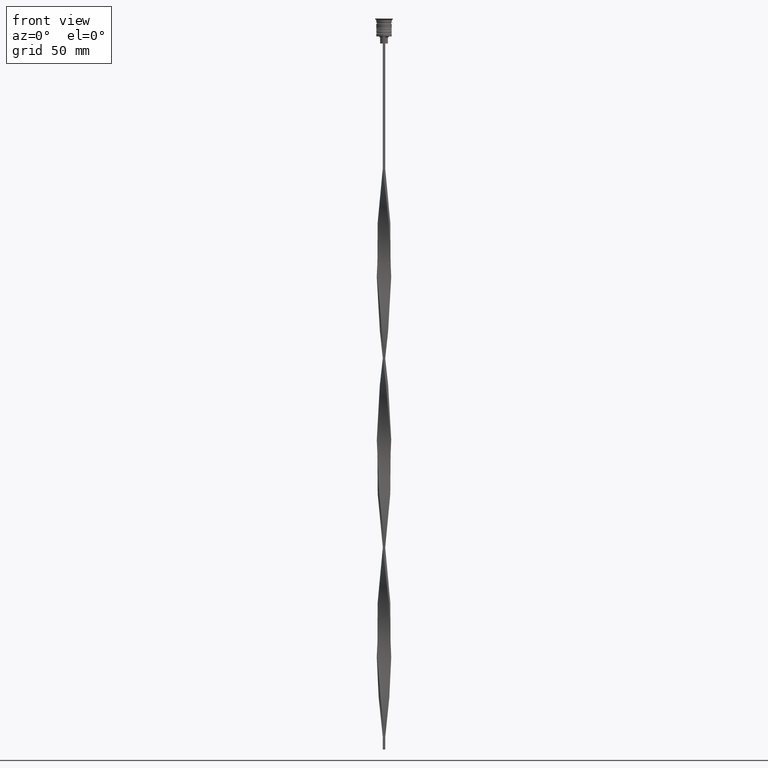
[diagram: clean part render]
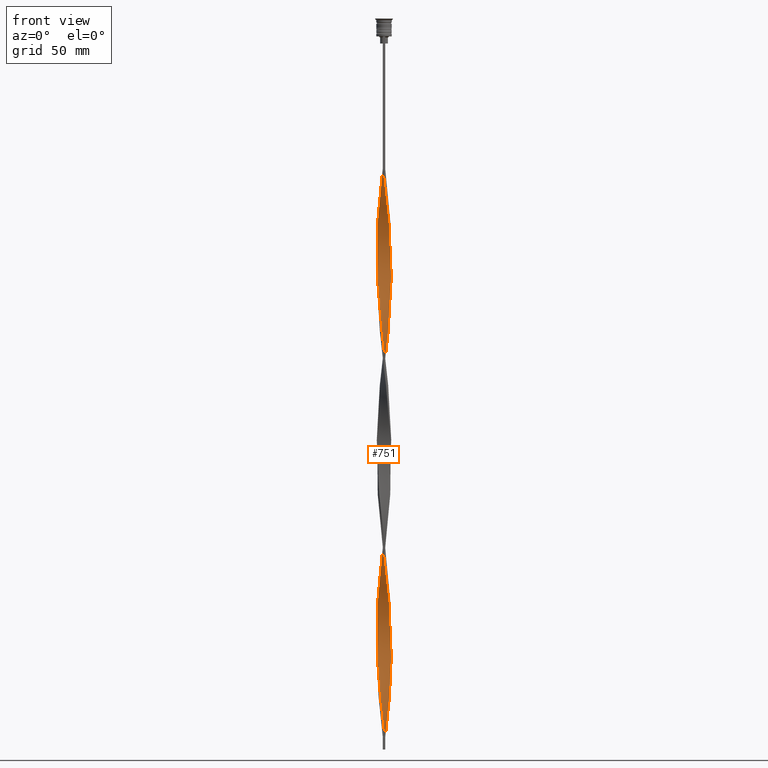
[diagram: same view with one face highlighted and labeled with its STEP entity id]
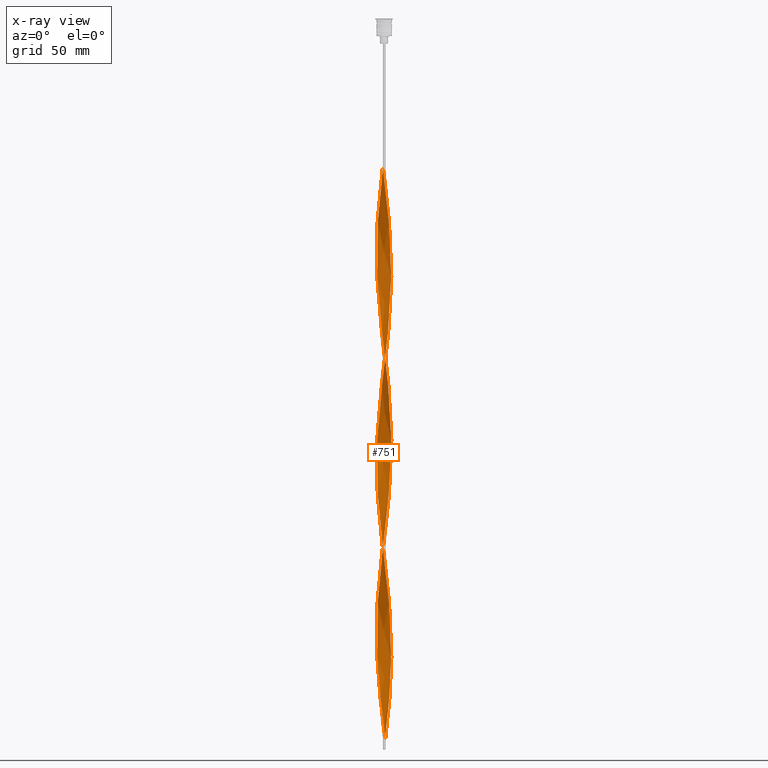
[diagram: x-ray of the same camera — body ghosted, the highlighted face saturated]
A machine part, front view. The second image highlights one B-rep face of the part: STEP entity #751.
The next image is the same camera in x-ray: the body ghosted, the highlighted face saturated — about 0% of this face is hidden behind the body in this view.
In plain terms, the highlighted face is a freeform B-spline surface patch.
Its self-contained STEP definition (entity closure, byte-faithful):
#2 = CARTESIAN_POINT ( 'NONE',  ( -3.007678046072934652, -0.4515227249772648110, -190.7333333333333201 ) ) ;
#9 = CARTESIAN_POINT ( 'NONE',  ( -1.402579241272419841, -2.698661051697986757, -214.6833333333333087 ) ) ;
#12 = CARTESIAN_POINT ( 'NONE',  ( -2.303772973937591395, -1.999981050443478514, -276.5541666666666742 ) ) ;
#16 = CARTESIAN_POINT ( 'NONE',  ( -2.167864254064893359, 2.133158356978606118, -238.6333333333332973 ) ) ;
#20 = CARTESIAN_POINT ( 'NONE',  ( 2.446024322695329989, -1.807474761312824363, -90.94166666666667709 ) ) ;
#27 = CARTESIAN_POINT ( 'NONE',  ( 1.999981050443478958, 2.303772973937590951, -288.5291666666666970 ) ) ;
#38 = CARTESIAN_POINT ( 'NONE',  ( -1.807474761312824807, -2.446024322695329989, -210.6916666666666345 ) ) ;
#49 = CARTESIAN_POINT ( 'NONE',  ( 2.809046431942904931, -1.190190010362667916, -256.5958333333333030 ) ) ;
#57 = CARTESIAN_POINT ( 'NONE',  ( -2.474873734152916782, 1.767766952966369098, -82.95833333333332860 ) ) ;
#61 = CARTESIAN_POINT ( 'NONE',  ( -1.807474761312824363, 2.446024322695330433, -74.97499999999999432 ) ) ;
#69 = CARTESIAN_POINT ( 'NONE',  ( 0.2148133291723920424, -3.043213655198747869, -228.6541666666666686 ) ) ;
#77 = CARTESIAN_POINT ( 'NONE',  ( -2.720943609271079033, 1.358847259689945686, -86.95000000000000284 ) ) ;
#80 = CARTESIAN_POINT ( 'NONE',  ( 2.474873734152916782, 1.767766952966368654, -282.5416666666666288 ) ) ;
#88 = CARTESIAN_POINT ( 'NONE',  ( -3.000000000000000000, 0.5000000000000006661, -182.7499999999999716 ) ) ;
#96 = CARTESIAN_POINT ( 'NONE',  ( 2.809046431942904931, -1.190190010362667916, -256.5958333333332462 ) ) ;
#118 = CARTESIAN_POINT ( 'NONE',  ( -0.2638948795261447655, -3.039350853412309039, -224.6624999999999943 ) ) ;
#131 = CARTESIAN_POINT ( 'NONE',  ( -0.9631475654182616308, 2.884847789265297724, -226.6583333333333030 ) ) ;
#137 = CARTESIAN_POINT ( 'NONE',  ( 0.02454077517687595564, -3.041282254305528010, -138.8416666666666401 ) ) ;
#148 = CARTESIAN_POINT ( 'NONE',  ( 2.972142436947120547, -0.6882321207821405773, -172.7708333333333144 ) ) ;
#152 = CARTESIAN_POINT ( 'NONE',  ( 3.007678046072934208, -0.4515227249772658102, -174.7666666666666515 ) ) ;
#169 = CARTESIAN_POINT ( 'NONE',  ( 0.9164682371244567971, 2.900014822434876738, -210.6916666666666345 ) ) ;
#174 = CARTESIAN_POINT ( 'NONE',  ( 2.972142436947120547, -0.6882321207821405773, -172.7708333333333144 ) ) ;
#188 = CARTESIAN_POINT ( 'NONE',  ( 2.809046431942905375, 1.190190010362665918, -188.7374999999999829 ) ) ;
#191 = CARTESIAN_POINT ( 'NONE',  ( 1.999981050443478070, -2.303772973937591839, -156.8041666666666458 ) ) ;
#207 = CARTESIAN_POINT ( 'NONE',  ( -2.303772973937591395, -1.999981050443478514, -116.8875000000000028 ) ) ;
#211 = CARTESIAN_POINT ( 'NONE',  ( 0.9164682371244567971, 2.900014822434876738, -210.6916666666666345 ) ) ;
#221 = CARTESIAN_POINT ( 'NONE',  ( 1.358847259689945686, -2.720943609271079033, -78.96666666666665435 ) ) ;
#226 = CARTESIAN_POINT ( 'NONE',  ( -0.6882321207821390230, -2.972142436947121436, -292.5208333333333144 ) ) ;
#234 = CARTESIAN_POINT ( 'NONE',  ( -2.446024322695330433, -1.807474761312824363, -274.5583333333332803 ) ) ;
#246 = CARTESIAN_POINT ( 'NONE',  ( 0.2638948795261451541, 3.039350853412309483, -144.8291666666666515 ) ) ;
#249 = CARTESIAN_POINT ( 'NONE',  ( -1.358847259689946130, -2.720943609271079033, -286.5333333333333030 ) ) ;
#253 = CARTESIAN_POINT ( 'NONE',  ( 0.02454077517687595564, -3.041282254305528010, -298.5083333333332689 ) ) ;
#257 = CARTESIAN_POINT ( 'NONE',  ( 2.972142436947121436, 0.6882321207821385789, -112.8958333333333570 ) ) ;
#264 = CARTESIAN_POINT ( 'NONE',  ( -2.588275671453068139, 1.614968472182172210, -172.7708333333333144 ) ) ;
#270 = CARTESIAN_POINT ( 'NONE',  ( 0.2148133291723913763, 3.043213655198747869, -216.6791666666666742 ) ) ;
#275 = CARTESIAN_POINT ( 'NONE',  ( 0.5000000000000004441, 3.000000000000000000, -142.8333333333333144 ) ) ;
#283 = CARTESIAN_POINT ( 'NONE',  ( 0.4515227249772652551, -3.007678046072934208, -70.98333333333333428 ) ) ;
#295 = CARTESIAN_POINT ( 'NONE',  ( -2.303772973937592283, 1.999981050443478070, -168.7791666666666401 ) ) ;
#304 = CARTESIAN_POINT ( 'NONE',  ( -2.960649146587690517, 0.7361051204738573439, -180.7541666666666629 ) ) ;
#307 = CARTESIAN_POINT ( 'NONE',  ( -2.960649146587690961, -0.7361051204738553455, -264.5791666666666515 ) ) ;
#310 = CARTESIAN_POINT ( 'NONE',  ( -3.039350853412309039, -0.2638948795261445990, -260.5874999999999773 ) ) ;
#314 = CARTESIAN_POINT ( 'NONE',  ( -2.720943609271079477, -1.358847259689944798, -198.7166666666666401 ) ) ;
#321 = CARTESIAN_POINT ( 'NONE',  ( 2.446024322695329989, -1.807474761312824363, -250.6083333333333201 ) ) ;
#330 = CARTESIAN_POINT ( 'NONE',  ( -1.190190010362667472, 2.809046431942904931, -68.98749999999999716 ) ) ;
#334 = CARTESIAN_POINT ( 'NONE',  ( 3.000000000000000000, -0.5000000000000003331, -102.9166666666666572 ) ) ;
#341 = CARTESIAN_POINT ( 'NONE',  ( 0.7361051204738559006, 2.960649146587690961, -300.5041666666666629 ) ) ;
#355 = CARTESIAN_POINT ( 'NONE',  ( 0.9631475654182618529, 2.884847789265297280, -298.5083333333332689 ) ) ;
#366 = CARTESIAN_POINT ( 'NONE',  ( -0.02454077517687638932, -3.041282254305528454, -226.6583333333333030 ) ) ;
#378 = CARTESIAN_POINT ( 'NONE',  ( 2.884847789265297724, -0.9631475654182618529, -258.5916666666666401 ) ) ;
#384 = CARTESIAN_POINT ( 'NONE',  ( 2.884847789265297724, -0.9631475654182618529, -258.5916666666666401 ) ) ;
#392 = CARTESIAN_POINT ( 'NONE',  ( -2.614000010619525138, 1.572990165913118021, -84.95416666666666572 ) ) ;
#410 = CARTESIAN_POINT ( 'NONE',  ( 1.614968472182171322, 2.588275671453069027, -292.5208333333333712 ) ) ;
#429 = CARTESIAN_POINT ( 'NONE',  ( -0.2638948795261426561, 3.039350853412309483, -220.6708333333333485 ) ) ;
#433 = CARTESIAN_POINT ( 'NONE',  ( -2.167864254064893803, -2.133158356978605230, -206.6999999999999602 ) ) ;
#444 = CARTESIAN_POINT ( 'NONE',  ( 2.720943609271079033, -1.358847259689946130, -166.7833333333333030 ) ) ;
#449 = CARTESIAN_POINT ( 'NONE',  ( 1.807474761312824141, -2.446024322695330433, -154.8083333333333371 ) ) ;
#461 = CARTESIAN_POINT ( 'NONE',  ( 1.144704353466773350, 2.827887207922633817, -208.6958333333333258 ) ) ;
#465 = CARTESIAN_POINT ( 'NONE',  ( 0.4999999999999997780, -3.000000000000000000, -142.8333333333333144 ) ) ;
#482 = CARTESIAN_POINT ( 'NONE',  ( 0.02454077517687595564, -3.041282254305528010, -138.8416666666666401 ) ) ;
#486 = CARTESIAN_POINT ( 'NONE',  ( 1.144704353466773128, 2.827887207922633817, -208.6958333333333258 ) ) ;
#500 = CARTESIAN_POINT ( 'NONE',  ( 1.572990165913119354, 2.614000010619523806, -204.7041666666666515 ) ) ;
#503 = CARTESIAN_POINT ( 'NONE',  ( 2.960649146587690517, 0.7361051204738562337, -184.7458333333333371 ) ) ;
#515 = CARTESIAN_POINT ( 'NONE',  ( -0.02454077517687638932, -3.041282254305528454, -66.99166666666667425 ) ) ;
#518 = CARTESIAN_POINT ( 'NONE',  ( -1.572990165913117799, -2.614000010619525138, -284.5375000000000796 ) ) ;
#521 = CARTESIAN_POINT ( 'NONE',  ( -2.720943609271079033, 1.358847259689945686, -86.95000000000000284 ) ) ;
#530 = CARTESIAN_POINT ( 'NONE',  ( 0.4999999999999997780, -3.000000000000000000, -302.5000000000000000 ) ) ;
#531 = CARTESIAN_POINT ( 'NONE',  ( 2.900014822434877182, 0.9164682371244560199, -114.8916666666666515 ) ) ;
#542 = CARTESIAN_POINT ( 'NONE',  ( -0.02454077517687562951, 3.041282254305528010, -218.6749999999999829 ) ) ;
#547 = CARTESIAN_POINT ( 'NONE',  ( -0.6882321207821383569, 2.972142436947121880, -152.8125000000000000 ) ) ;
#554 = CARTESIAN_POINT ( 'NONE',  ( 3.000000000000000000, -0.5000000000000003331, -102.9166666666666572 ) ) ;
#558 = CARTESIAN_POINT ( 'NONE',  ( -2.884847789265297724, -0.9631475654182615198, -266.5749999999999318 ) ) ;
#562 = CARTESIAN_POINT ( 'NONE',  ( -1.767766952966369098, -2.474873734152916338, -282.5416666666666288 ) ) ;
#566 = CARTESIAN_POINT ( 'NONE',  ( -2.588275671453068139, 1.614968472182172432, -172.7708333333333144 ) ) ;
#573 = CARTESIAN_POINT ( 'NONE',  ( -1.572990165913117355, 2.614000010619525582, -160.7958333333332916 ) ) ;
#576 = CARTESIAN_POINT ( 'NONE',  ( -0.4515227249772655882, -3.007678046072934208, -294.5166666666666515 ) ) ;
#580 = CARTESIAN_POINT ( 'NONE',  ( -0.6882321207821390230, -2.972142436947121436, -292.5208333333333712 ) ) ;
#585 = CARTESIAN_POINT ( 'NONE',  ( -3.041282254305528454, 0.02454077517687698606, -186.7416666666666458 ) ) ;
#592 = CARTESIAN_POINT ( 'NONE',  ( -0.5000000000000001110, -3.000000000000000000, -63.00000000000000000 ) ) ;
#598 = CARTESIAN_POINT ( 'NONE',  ( -2.972142436947121436, 0.6882321207821388009, -252.6041666666666003 ) ) ;
#605 = CARTESIAN_POINT ( 'NONE',  ( -1.962543740019619731, 2.335747457686310202, -164.7874999999999659 ) ) ;
#615 = CARTESIAN_POINT ( 'NONE',  ( 2.960649146587690961, -0.7361051204738556786, -260.5874999999999773 ) ) ;
#626 = CARTESIAN_POINT ( 'NONE',  ( -1.358847259689945242, 2.720943609271079033, -158.7999999999999829 ) ) ;
#634 = CARTESIAN_POINT ( 'NONE',  ( -2.614000010619524250, -1.572990165913118243, -200.7124999999999773 ) ) ;
#641 = CARTESIAN_POINT ( 'NONE',  ( -3.007678046072934208, 0.4515227249772654772, -94.93333333333332291 ) ) ;
#645 = CARTESIAN_POINT ( 'NONE',  ( 0.9164682371244560199, -2.900014822434877182, -234.6416666666666515 ) ) ;
#653 = CARTESIAN_POINT ( 'NONE',  ( 2.900014822434877182, 0.9164682371244560199, -274.5583333333332803 ) ) ;
#665 = CARTESIAN_POINT ( 'NONE',  ( 1.190190010362667916, 2.809046431942904931, -296.5125000000000455 ) ) ;
#676 = CARTESIAN_POINT ( 'NONE',  ( 2.698661051697986757, -1.402579241272419397, -254.5999999999999375 ) ) ;
#687 = CARTESIAN_POINT ( 'NONE',  ( -2.474873734152916782, 1.767766952966369098, -82.95833333333332860 ) ) ;
#694 = CARTESIAN_POINT ( 'NONE',  ( 1.807474761312824807, 2.446024322695329989, -290.5249999999999204 ) ) ;
#703 = CARTESIAN_POINT ( 'NONE',  ( 2.900014822434877182, 0.9164682371244560199, -274.5583333333332803 ) ) ;
#708 = CARTESIAN_POINT ( 'NONE',  ( 0.2148133291723920146, -3.043213655198747869, -68.98749999999999716 ) ) ;
#716 = CARTESIAN_POINT ( 'NONE',  ( 3.007678046072934208, -0.4515227249772658102, -174.7666666666666515 ) ) ;
#719 = CARTESIAN_POINT ( 'NONE',  ( 2.960649146587690517, -0.7361051204738555676, -260.5874999999999773 ) ) ;
#739 = CARTESIAN_POINT ( 'NONE',  ( -1.999981050443478514, 2.303772973937591395, -236.6374999999999886 ) ) ;
#743 = CARTESIAN_POINT ( 'NONE',  ( -2.972142436947121436, 0.6882321207821388009, -92.93750000000001421 ) ) ;
#751 = ADVANCED_FACE ( 'NONE', ( #1585 ), #1913, .T. ) ;
#757 = CARTESIAN_POINT ( 'NONE',  ( 3.039350853412309483, 0.2638948795261428781, -180.7541666666666629 ) ) ;
#759 = CARTESIAN_POINT ( 'NONE',  ( 1.190190010362667472, -2.809046431942904931, -148.8208333333332973 ) ) ;
#774 = CARTESIAN_POINT ( 'NONE',  ( -0.2148133291723924865, -3.043213655198747869, -136.8458333333333314 ) ) ;
#778 = CARTESIAN_POINT ( 'NONE',  ( 1.572990165913119576, 2.614000010619524250, -204.7041666666666799 ) ) ;
#788 = CARTESIAN_POINT ( 'NONE',  ( 1.999981050443478958, 2.303772973937591395, -128.8624999999999829 ) ) ;
#796 = CARTESIAN_POINT ( 'NONE',  ( -0.4515227249772655882, -3.007678046072934208, -134.8499999999999659 ) ) ;
#801 = CARTESIAN_POINT ( 'NONE',  ( 3.000000000000000000, 0.4999999999999995559, -182.7499999999999716 ) ) ;
#812 = CARTESIAN_POINT ( 'NONE',  ( 0.02454077517687682300, 3.041282254305528454, -146.8249999999999886 ) ) ;
#815 = CARTESIAN_POINT ( 'NONE',  ( -0.9164682371244565751, -2.900014822434876738, -290.5249999999999204 ) ) ;
#818 = CARTESIAN_POINT ( 'NONE',  ( -1.358847259689946130, -2.720943609271079033, -126.8666666666666600 ) ) ;
#830 = CARTESIAN_POINT ( 'NONE',  ( -1.767766952966368654, 2.474873734152917226, -162.7916666666666572 ) ) ;
#834 = CARTESIAN_POINT ( 'NONE',  ( -0.2148133291723924865, -3.043213655198747869, -296.5124999999999886 ) ) ;
#849 = CARTESIAN_POINT ( 'NONE',  ( -2.303772973937591839, 1.999981050443478070, -168.7791666666666401 ) ) ;
#866 = CARTESIAN_POINT ( 'NONE',  ( 1.614968472182171322, 2.588275671453069027, -132.8541666666666572 ) ) ;
#873 = CARTESIAN_POINT ( 'NONE',  ( 1.190190010362667916, 2.809046431942904931, -136.8458333333333314 ) ) ;
#876 = CARTESIAN_POINT ( 'NONE',  ( -2.809046431942904931, -1.190190010362667472, -268.5708333333333258 ) ) ;
#880 = CARTESIAN_POINT ( 'NONE',  ( -3.000000000000000000, -0.4999999999999998890, -262.5833333333332575 ) ) ;
#883 = CARTESIAN_POINT ( 'NONE',  ( -2.884847789265297280, 0.9631475654182620749, -178.7583333333332973 ) ) ;
#889 = CARTESIAN_POINT ( 'NONE',  ( 0.5000000000000002220, 1.000000000000000000, -302.5000000000000000 ) ) ;
#900 = CARTESIAN_POINT ( 'NONE',  ( -0.4515227249772649221, 3.007678046072934652, -150.8166666666666629 ) ) ;
#908 = CARTESIAN_POINT ( 'NONE',  ( 3.000000000000000000, -0.5000000000000003331, -262.5833333333332575 ) ) ;
#916 = CARTESIAN_POINT ( 'NONE',  ( -2.588275671453069027, -1.614968472182170878, -272.5624999999998863 ) ) ;
#924 = CARTESIAN_POINT ( 'NONE',  ( 1.807474761312824807, 2.446024322695329989, -130.8583333333333201 ) ) ;
#934 = CARTESIAN_POINT ( 'NONE',  ( 2.303772973937590951, -1.999981050443478958, -248.6124999999999829 ) ) ;
#941 = CARTESIAN_POINT ( 'NONE',  ( -2.614000010619525138, 1.572990165913117799, -84.95416666666666572 ) ) ;
#945 = CARTESIAN_POINT ( 'NONE',  ( 0.7361051204738557896, 2.960649146587690517, -300.5041666666666629 ) ) ;
#954 = CARTESIAN_POINT ( 'NONE',  ( -0.5000000000000001110, -3.000000000000000000, -222.6666666666666288 ) ) ;
#963 = CARTESIAN_POINT ( 'NONE',  ( 2.698661051697986757, -1.402579241272419397, -254.5999999999999375 ) ) ;
#970 = CARTESIAN_POINT ( 'NONE',  ( -2.884847789265297280, 0.9631475654182620749, -178.7583333333332973 ) ) ;
#972 = EDGE_CURVE ( 'NONE', #1357, #2920, #2328, .T. ) ;
#978 = CARTESIAN_POINT ( 'NONE',  ( -3.039350853412309483, -0.2638948795261445990, -100.9208333333333343 ) ) ;
#982 = CARTESIAN_POINT ( 'NONE',  ( 2.614000010619525138, 1.572990165913117577, -280.5458333333333485 ) ) ;
#992 = CARTESIAN_POINT ( 'NONE',  ( 0.6882321207821388009, -2.972142436947121436, -232.6458333333333428 ) ) ;
#1002 = CARTESIAN_POINT ( 'NONE',  ( 1.962543740019620175, -2.335747457686308870, -244.6208333333333371 ) ) ;
#1006 = CARTESIAN_POINT ( 'NONE',  ( -0.5000000000000001110, -3.000000000000000000, -63.00000000000000000 ) ) ;
#1018 = CARTESIAN_POINT ( 'NONE',  ( -0.9631475654182622970, -2.884847789265297280, -218.6749999999999829 ) ) ;
#1030 = CARTESIAN_POINT ( 'NONE',  ( -0.5000000000000001110, 3.000000000000000000, -222.6666666666666288 ) ) ;
#1034 = CARTESIAN_POINT ( 'NONE',  ( -2.698661051697987201, -1.402579241272419175, -110.9000000000000057 ) ) ;
#1053 = CARTESIAN_POINT ( 'NONE',  ( 1.358847259689946352, 2.720943609271079033, -206.6999999999999602 ) ) ;
#1056 = CARTESIAN_POINT ( 'NONE',  ( 1.358847259689946352, 2.720943609271079033, -206.6999999999999602 ) ) ;
#1071 = CARTESIAN_POINT ( 'NONE',  ( 3.041282254305528010, 0.02454077517687579257, -178.7583333333332973 ) ) ;
#1074 = CARTESIAN_POINT ( 'NONE',  ( -1.144704353466773794, -2.827887207922633372, -128.8624999999999829 ) ) ;
#1082 = CARTESIAN_POINT ( 'NONE',  ( 1.402579241272419397, 2.698661051697986757, -134.8499999999999659 ) ) ;
#1089 = CARTESIAN_POINT ( 'NONE',  ( 1.807474761312824141, -2.446024322695330433, -154.8083333333333371 ) ) ;
#1093 = CARTESIAN_POINT ( 'NONE',  ( 2.474873734152916338, -1.767766952966369542, -162.7916666666666572 ) ) ;
#1105 = CARTESIAN_POINT ( 'NONE',  ( 1.767766952966369098, -2.474873734152916782, -82.95833333333332860 ) ) ;
#1111 = CARTESIAN_POINT ( 'NONE',  ( 2.335747457686308426, -1.962543740019620842, -160.7958333333332916 ) ) ;
#1115 = CARTESIAN_POINT ( 'NONE',  ( -2.884847789265297724, -0.9631475654182615198, -106.9083333333333314 ) ) ;
#1126 = CARTESIAN_POINT ( 'NONE',  ( -1.144704353466773350, 2.827887207922633817, -156.8041666666666458 ) ) ;
#1131 = CARTESIAN_POINT ( 'NONE',  ( -2.884847789265297724, -0.9631475654182615198, -266.5749999999999318 ) ) ;
#1143 = CARTESIAN_POINT ( 'NONE',  ( 2.335747457686308870, 1.962543740019620397, -124.8708333333333371 ) ) ;
#1152 = CARTESIAN_POINT ( 'NONE',  ( 2.335747457686308870, 1.962543740019620175, -124.8708333333333371 ) ) ;
#1161 = CARTESIAN_POINT ( 'NONE',  ( -2.809046431942904931, 1.190190010362667028, -176.7624999999999886 ) ) ;
#1165 = CARTESIAN_POINT ( 'NONE',  ( -3.000000000000000000, -0.4999999999999998890, -262.5833333333332575 ) ) ;
#1175 = CARTESIAN_POINT ( 'NONE',  ( 2.884847789265297724, -0.9631475654182618529, -98.92499999999998295 ) ) ;
#1179 = EDGE_LOOP ( 'NONE', ( #3806, #3332, #3798, #2034 ) ) ;
#1182 = CARTESIAN_POINT ( 'NONE',  ( -0.9164682371244557979, 2.900014822434877182, -154.8083333333333371 ) ) ;
#1190 = CARTESIAN_POINT ( 'NONE',  ( -3.041282254305528454, -0.02454077517687622625, -258.5916666666666401 ) ) ;
#1193 = CARTESIAN_POINT ( 'NONE',  ( -2.972142436947120991, -0.6882321207821395781, -192.7291666666666288 ) ) ;
#1200 = CARTESIAN_POINT ( 'NONE',  ( -2.167864254064893803, -2.133158356978605230, -206.6999999999999602 ) ) ;
#1211 = CARTESIAN_POINT ( 'NONE',  ( 3.041282254305528454, -0.02454077517687655238, -106.9083333333333314 ) ) ;
#1218 = CARTESIAN_POINT ( 'NONE',  ( -3.041282254305528454, 0.02454077517687698606, -186.7416666666666458 ) ) ;
#1235 = CARTESIAN_POINT ( 'NONE',  ( -0.02454077517687638932, -3.041282254305528454, -226.6583333333333030 ) ) ;
#1245 = CARTESIAN_POINT ( 'NONE',  ( 2.335747457686308870, 1.962543740019620397, -284.5375000000000796 ) ) ;
#1254 = CARTESIAN_POINT ( 'NONE',  ( -2.335747457686310202, -1.962543740019619509, -204.7041666666666799 ) ) ;
#1262 = CARTESIAN_POINT ( 'NONE',  ( -3.039350853412309483, 0.2638948795261439328, -184.7458333333333371 ) ) ;
#1269 = CARTESIAN_POINT ( 'NONE',  ( -3.043213655198747869, 0.2148133291723922644, -96.92916666666667425 ) ) ;
#1272 = CARTESIAN_POINT ( 'NONE',  ( -2.614000010619524250, -1.572990165913118465, -200.7124999999999773 ) ) ;
#1278 = CARTESIAN_POINT ( 'NONE',  ( -2.972142436947120991, -0.6882321207821395781, -192.7291666666666572 ) ) ;
#1286 = CARTESIAN_POINT ( 'NONE',  ( -1.402579241272419175, 2.698661051697986757, -70.98333333333333428 ) ) ;
#1290 = CARTESIAN_POINT ( 'NONE',  ( 2.827887207922633817, 1.144704353466773572, -276.5541666666666174 ) ) ;
#1310 = CARTESIAN_POINT ( 'NONE',  ( 3.039350853412309039, -0.2638948795261449320, -264.5791666666666515 ) ) ;
#1321 = CARTESIAN_POINT ( 'NONE',  ( -0.6882321207821390230, -2.972142436947121436, -132.8541666666666572 ) ) ;
#1326 = CARTESIAN_POINT ( 'NONE',  ( 0.7361051204738550124, -2.960649146587690517, -144.8291666666666515 ) ) ;
#1339 = CARTESIAN_POINT ( 'NONE',  ( 0.4999999999999997780, -3.000000000000000000, -142.8333333333333144 ) ) ;
#1342 = CARTESIAN_POINT ( 'NONE',  ( 2.167864254064892915, -2.133158356978606118, -158.7999999999999829 ) ) ;
#1357 = VERTEX_POINT ( 'NONE', #3739 ) ;
#1363 = CARTESIAN_POINT ( 'NONE',  ( 2.614000010619524250, -1.572990165913119132, -164.7874999999999659 ) ) ;
#1366 = CARTESIAN_POINT ( 'NONE',  ( 3.041282254305528010, 0.02454077517687579257, -178.7583333333332973 ) ) ;
#1381 = CARTESIAN_POINT ( 'NONE',  ( -0.02454077517687562951, 3.041282254305528010, -218.6749999999999829 ) ) ;
#1384 = CARTESIAN_POINT ( 'NONE',  ( -2.827887207922633372, 1.144704353466773794, -88.94583333333332575 ) ) ;
#1398 = CARTESIAN_POINT ( 'NONE',  ( -0.9164682371244565751, -2.900014822434876738, -130.8583333333333201 ) ) ;
#1401 = CARTESIAN_POINT ( 'NONE',  ( 0.6882321207821407993, 2.972142436947120547, -212.6875000000000284 ) ) ;
#1415 = CARTESIAN_POINT ( 'NONE',  ( 2.720943609271079033, 1.358847259689945242, -118.8833333333333258 ) ) ;
#1426 = CARTESIAN_POINT ( 'NONE',  ( -0.5000000000000001110, 3.000000000000000000, -222.6666666666666288 ) ) ;
#1438 = CARTESIAN_POINT ( 'NONE',  ( 0.9631475654182618529, 2.884847789265297280, -138.8416666666666401 ) ) ;
#1439 = CARTESIAN_POINT ( 'NONE',  ( 0.5000000000000004441, 3.000000000000000000, -302.5000000000000000 ) ) ;
#1441 = CARTESIAN_POINT ( 'NONE',  ( -2.827887207922633372, 1.144704353466774016, -248.6124999999999829 ) ) ;
#1448 = CARTESIAN_POINT ( 'NONE',  ( 0.02454077517687682300, 3.041282254305528454, -146.8249999999999886 ) ) ;
#1455 = CARTESIAN_POINT ( 'NONE',  ( 3.043213655198747869, 0.2148133291723917371, -108.9041666666666828 ) ) ;
#1458 = CARTESIAN_POINT ( 'NONE',  ( 0.02454077517687595564, -3.041282254305528010, -298.5083333333332689 ) ) ;
#1461 = CARTESIAN_POINT ( 'NONE',  ( -0.4515227249772655882, -3.007678046072934208, -294.5166666666666515 ) ) ;
#1464 = CARTESIAN_POINT ( 'NONE',  ( 2.900014822434877182, 0.9164682371244560199, -114.8916666666666515 ) ) ;
#1472 = CARTESIAN_POINT ( 'NONE',  ( 2.167864254064893359, 2.133158356978605230, -126.8666666666666600 ) ) ;
#1484 = CARTESIAN_POINT ( 'NONE',  ( -2.614000010619525138, 1.572990165913118021, -244.6208333333333371 ) ) ;
#1487 = CARTESIAN_POINT ( 'NONE',  ( -3.039350853412309039, 0.2638948795261439328, -184.7458333333333371 ) ) ;
#1495 = CARTESIAN_POINT ( 'NONE',  ( -0.7361051204738575660, -2.960649146587690517, -220.6708333333333485 ) ) ;
#1501 = CARTESIAN_POINT ( 'NONE',  ( -0.2148133291723924587, -3.043213655198747869, -296.5125000000000455 ) ) ;
#1505 = CARTESIAN_POINT ( 'NONE',  ( 1.767766952966369098, -2.474873734152916782, -82.95833333333332860 ) ) ;
#1512 = CARTESIAN_POINT ( 'NONE',  ( -0.9631475654182622970, -2.884847789265297280, -218.6749999999999829 ) ) ;
#1519 = CARTESIAN_POINT ( 'NONE',  ( -2.167864254064893359, 2.133158356978606118, -78.96666666666665435 ) ) ;
#1524 = CARTESIAN_POINT ( 'NONE',  ( 0.7361051204738557896, 2.960649146587690517, -140.8375000000000057 ) ) ;
#1531 = CARTESIAN_POINT ( 'NONE',  ( -1.614968472182172432, -2.588275671453068139, -212.6875000000000000 ) ) ;
#1546 = CARTESIAN_POINT ( 'NONE',  ( -1.614968472182171100, 2.588275671453069027, -72.97916666666665719 ) ) ;
#1556 = CARTESIAN_POINT ( 'NONE',  ( 1.572990165913117799, -2.614000010619525138, -240.6291666666666629 ) ) ;
#1562 = CARTESIAN_POINT ( 'NONE',  ( -1.807474761312824363, 2.446024322695330433, -74.97499999999999432 ) ) ;
#1565 = CARTESIAN_POINT ( 'NONE',  ( 2.133158356978606118, -2.167864254064893359, -246.6166666666666174 ) ) ;
#1572 = CARTESIAN_POINT ( 'NONE',  ( -1.190190010362667250, -2.809046431942904931, -216.6791666666666742 ) ) ;
#1581 = CARTESIAN_POINT ( 'NONE',  ( -0.7361051204738575660, -2.960649146587690073, -220.6708333333333485 ) ) ;
#1585 = FACE_OUTER_BOUND ( 'NONE', #1179, .T. ) ;
#1592 = EDGE_CURVE ( 'NONE', #2902, #2920, #1802, .T. ) ;
#1600 = CARTESIAN_POINT ( 'NONE',  ( 3.043213655198747869, 0.2148133291723917371, -268.5708333333332689 ) ) ;
#1617 = CARTESIAN_POINT ( 'NONE',  ( -0.7361051204738554565, 2.960649146587690961, -224.6624999999999943 ) ) ;
#1621 = CARTESIAN_POINT ( 'NONE',  ( -1.402579241272419841, -2.698661051697986757, -214.6833333333333087 ) ) ;
#1632 = CARTESIAN_POINT ( 'NONE',  ( 2.884847789265297724, 0.9631475654182610757, -186.7416666666666458 ) ) ;
#1637 = CARTESIAN_POINT ( 'NONE',  ( 3.043213655198747869, -0.2148133291723912652, -176.7624999999999886 ) ) ;
#1649 = CARTESIAN_POINT ( 'NONE',  ( -1.358847259689946130, -2.720943609271079033, -126.8666666666666600 ) ) ;
#1653 = CARTESIAN_POINT ( 'NONE',  ( -3.000000000000000000, -0.4999999999999998890, -102.9166666666666572 ) ) ;
#1675 = CARTESIAN_POINT ( 'NONE',  ( 1.999981050443478070, -2.303772973937591395, -156.8041666666666458 ) ) ;
#1678 = CARTESIAN_POINT ( 'NONE',  ( -1.767766952966369098, -2.474873734152916338, -122.8749999999999858 ) ) ;
#1692 = CARTESIAN_POINT ( 'NONE',  ( 2.698661051697987201, 1.402579241272418731, -190.7333333333333201 ) ) ;
#1695 = CARTESIAN_POINT ( 'NONE',  ( 2.809046431942905375, 1.190190010362665918, -188.7374999999999545 ) ) ;
#1707 = CARTESIAN_POINT ( 'NONE',  ( 2.960649146587690961, -0.7361051204738556786, -100.9208333333333343 ) ) ;
#1711 = CARTESIAN_POINT ( 'NONE',  ( -2.614000010619525138, 1.572990165913117799, -244.6208333333333087 ) ) ;
#1714 = CARTESIAN_POINT ( 'NONE',  ( -1.190190010362667694, 2.809046431942904931, -228.6541666666666686 ) ) ;
#1727 = CARTESIAN_POINT ( 'NONE',  ( 0.2148133291723920424, -3.043213655198747869, -68.98749999999999716 ) ) ;
#1731 = CARTESIAN_POINT ( 'NONE',  ( 0.4999999999999997780, -3.000000000000000000, -302.5000000000000000 ) ) ;
#1742 = CARTESIAN_POINT ( 'NONE',  ( -2.133158356978605230, 2.167864254064893359, -166.7833333333333030 ) ) ;
#1749 = CARTESIAN_POINT ( 'NONE',  ( -0.2148133291723916816, 3.043213655198747869, -148.8208333333333258 ) ) ;
#1759 = CARTESIAN_POINT ( 'NONE',  ( 1.144704353466773572, -2.827887207922633817, -76.97083333333333144 ) ) ;
#1766 = CARTESIAN_POINT ( 'NONE',  ( 2.588275671453069027, -1.614968472182171100, -92.93750000000000000 ) ) ;
#1769 = CARTESIAN_POINT ( 'NONE',  ( 0.2638948795261443769, -3.039350853412309483, -300.5041666666666629 ) ) ;
#1774 = CARTESIAN_POINT ( 'NONE',  ( -0.5000000000000001110, -3.000000000000000000, -63.00000000000000000 ) ) ;
#1777 = CARTESIAN_POINT ( 'NONE',  ( 1.190190010362667916, 2.809046431942904931, -136.8458333333333314 ) ) ;
#1785 = CARTESIAN_POINT ( 'NONE',  ( 2.884847789265297724, -0.9631475654182618529, -98.92499999999998295 ) ) ;
#1798 = CARTESIAN_POINT ( 'NONE',  ( -2.809046431942904931, -1.190190010362667694, -268.5708333333332689 ) ) ;
#1802 = B_SPLINE_CURVE_WITH_KNOTS ( 'NONE', 3,
 ( #2042, #889, #2898, #530 ),
 .UNSPECIFIED., .F., .F.,
 ( 4, 4 ),
 ( 0.000000000000000000, 1.000000000000000000 ),
 .UNSPECIFIED. ) ;
#1803 = CARTESIAN_POINT ( 'NONE',  ( 2.698661051697986757, -1.402579241272419397, -94.93333333333332291 ) ) ;
#1811 = CARTESIAN_POINT ( 'NONE',  ( 0.9631475654182618529, 2.884847789265297280, -298.5083333333332689 ) ) ;
#1821 = CARTESIAN_POINT ( 'NONE',  ( -1.767766952966368654, 2.474873734152917226, -162.7916666666666572 ) ) ;
#1828 = CARTESIAN_POINT ( 'NONE',  ( -2.335747457686310202, -1.962543740019619065, -204.7041666666666515 ) ) ;
#1837 = CARTESIAN_POINT ( 'NONE',  ( -0.5000000000000001110, 3.000000000000000000, -63.00000000000000000 ) ) ;
#1842 = CARTESIAN_POINT ( 'NONE',  ( 0.6882321207821388009, -2.972142436947121436, -232.6458333333333428 ) ) ;
#1849 = CARTESIAN_POINT ( 'NONE',  ( 2.614000010619525138, 1.572990165913117577, -280.5458333333333485 ) ) ;
#1856 = CARTESIAN_POINT ( 'NONE',  ( -0.5000000000000001110, -3.000000000000000000, -63.00000000000000000 ) ) ;
#1859 = CARTESIAN_POINT ( 'NONE',  ( -0.9631475654182616308, 2.884847789265297724, -66.99166666666667425 ) ) ;
#1866 = CARTESIAN_POINT ( 'NONE',  ( -2.167864254064893359, 2.133158356978606118, -78.96666666666665435 ) ) ;
#1885 = CARTESIAN_POINT ( 'NONE',  ( -0.5000000000000001110, 3.000000000000000000, -63.00000000000000000 ) ) ;
#1891 = CARTESIAN_POINT ( 'NONE',  ( 3.039350853412309483, -0.2638948795261449320, -264.5791666666666515 ) ) ;
#1898 = CARTESIAN_POINT ( 'NONE',  ( -2.960649146587690961, -0.7361051204738553455, -104.9125000000000085 ) ) ;
#1901 = CARTESIAN_POINT ( 'NONE',  ( -1.614968472182172654, -2.588275671453068139, -212.6875000000000284 ) ) ;
#1906 = CARTESIAN_POINT ( 'NONE',  ( 0.4515227249772652551, -3.007678046072934208, -70.98333333333333428 ) ) ;
#1913 =( BOUNDED_SURFACE ( )  B_SPLINE_SURFACE ( 1, 2, ( 
 ( #1006, #2198, #3383, #708, #1906, #3534, #2951, #1759, #3823, #3278, #1505, #2700, #3012, #2640, #20, #3461, #1803, #2093, #1175, #2057, #334, #2347, #1211, #2407, #1987, #257, #1464, #3593, #2658, #3220, #3554, #1152, #2371, #788, #924, #866, #1082, #1777, #2116, #1524, #275, #3301, #1448, #2968, #900, #547, #2720, #3242, #626, #2275, #1821, #605, #1742, #295, #2934, #566, #3843, #2993, #883, #2075, #3259, #1487, #585, #2680, #2, #1193, #2388, #3572, #314, #1272, #3689, #1254, #433, #2193, #38, #1901, #1621, #2450, #1018, #1581, #3378, #118, #1235, #2746, #3321, #1842, #645, #2468, #2491, #2779, #3652, #1002, #1565, #3616, #2762, #2433, #963, #96, #378, #719, #3634, #1310, #3032, #1600, #3057, #2152, #703, #1290, #3672, #982, #80, #3090, #3074, #1922, #2176, #410, #2798, #665, #355, #945, #2134 ),
 ( #1885, #2209, #3111, #3395, #2508, #1546, #61, #3340, #1866, #3362, #687, #392, #521, #1384, #1957, #743, #2523, #3473, #2814, #2599, #1653, #1995, #1115, #3179, #1034, #3492, #2248, #2869, #2564, #3143, #1678, #1973, #818, #1074, #2581, #3763, #3434, #2228, #137, #3705, #465, #1326, #3418, #759, #1939, #3127, #449, #191, #1342, #3162, #1093, #3783, #2284, #2266, #2850, #174, #152, #1637, #1366, #2307, #801, #503, #3746, #1695, #2830, #2888, #3729, #2013, #3453, #3196, #2543, #778, #1056, #486, #211, #1401, #2618, #270, #542, #2947, #1426, #2989, #2930, #1714, #2368, #2088, #3587, #3529, #16, #2032, #3551, #1484, #3803, #3297, #3215, #598, #2907, #3272, #1190, #310, #880, #2402, #1131, #1798, #3860, #916, #234, #2325, #2071, #2636, #562, #3838, #2344, #3510, #3255, #580, #1461, #1501, #253, #2112, #2385 ) ),
 .UNSPECIFIED., .F., .F., .F. ) 
 B_SPLINE_SURFACE_WITH_KNOTS ( ( 2, 2 ),
 ( 3, 2, 2, 2, 2, 2, 2, 2, 2, 2, 2, 2, 2, 2, 2, 2, 2, 2, 2, 2, 2, 2, 2, 2, 2, 2, 2, 2, 2, 2, 2, 2, 2, 2, 2, 2, 2, 2, 2, 2, 2, 2, 2, 2, 2, 2, 2, 2, 2, 2, 2, 2, 2, 2, 2, 2, 2, 2, 2, 2, 3 ),
 ( 0.000000000000000000, 1.000000000000000000 ),
 ( 0.000000000000000000, 0.01250000000000000069, 0.02500000000000000139, 0.03749999999999999861, 0.05000000000000000278, 0.06250000000000000000, 0.07499999999999999722, 0.08749999999999999445, 0.1000000000000000056, 0.1125000000000000028, 0.1250000000000000000, 0.1375000000000000111, 0.1499999999999999944, 0.1625000000000000056, 0.1749999999999999889, 0.1875000000000000000, 0.2000000000000000111, 0.2124999999999999944, 0.2250000000000000056, 0.2374999999999999889, 0.2500000000000000000, 0.2625000000000000111, 0.2750000000000000222, 0.2874999999999999778, 0.2999999999999999889, 0.3125000000000000000, 0.3250000000000000111, 0.3375000000000000222, 0.3499999999999999778, 0.3624999999999999889, 0.3750000000000000000, 0.3875000000000000111, 0.4000000000000000222, 0.4124999999999999778, 0.4249999999999999889, 0.4375000000000000000, 0.4500000000000000111, 0.4625000000000000222, 0.4749999999999999778, 0.4874999999999999889, 0.5000000000000000000, 0.5124999999999999556, 0.5250000000000000222, 0.5374999999999999778, 0.5500000000000000444, 0.5625000000000000000, 0.5749999999999999556, 0.5875000000000000222, 0.5999999999999999778, 0.6125000000000000444, 0.6250000000000000000, 0.6374999999999999556, 0.6500000000000000222, 0.6624999999999999778, 0.6750000000000000444, 0.6875000000000000000, 0.6999999999999999556, 0.7125000000000000222, 0.7249999999999999778, 0.7375000000000000444, 0.7500000000000000000 ),
 .UNSPECIFIED. ) 
 GEOMETRIC_REPRESENTATION_ITEM ( )  RATIONAL_B_SPLINE_SURFACE ( (
 ( 1.000000000000000000, 0.9969173337331279638, 1.000000000000000000, 0.9969173337331279638, 1.000000000000000000, 0.9969173337331279638, 1.000000000000000000, 0.9969173337331279638, 1.000000000000000000, 0.9969173337331279638, 1.000000000000000000, 0.9969173337331279638, 1.000000000000000000, 0.9969173337331279638, 1.000000000000000000, 0.9969173337331279638, 1.000000000000000000, 0.9969173337331279638, 1.000000000000000000, 0.9969173337331279638, 1.000000000000000000, 0.9969173337331279638, 1.000000000000000000, 0.9969173337331279638, 1.000000000000000000, 0.9969173337331279638, 1.000000000000000000, 0.9969173337331279638, 1.000000000000000000, 0.9969173337331279638, 1.000000000000000000, 0.9969173337331279638, 1.000000000000000000, 0.9969173337331279638, 1.000000000000000000, 0.9969173337331279638, 1.000000000000000000, 0.9969173337331279638, 1.000000000000000000, 0.9969173337331279638, 1.000000000000000000, 0.9969173337331279638, 1.000000000000000000, 0.9969173337331279638, 1.000000000000000000, 0.9969173337331279638, 1.000000000000000000, 0.9969173337331279638, 1.000000000000000000, 0.9969173337331279638, 1.000000000000000000, 0.9969173337331279638, 1.000000000000000000, 0.9969173337331279638, 1.000000000000000000, 0.9969173337331279638, 1.000000000000000000, 0.9969173337331279638, 1.000000000000000000, 0.9969173337331279638, 1.000000000000000000, 0.9969173337331279638, 1.000000000000000000, 0.9969173337331279638, 1.000000000000000000, 0.9969173337331279638, 1.000000000000000000, 0.9969173337331279638, 1.000000000000000000, 0.9969173337331279638, 1.000000000000000000, 0.9969173337331279638, 1.000000000000000000, 0.9969173337331279638, 1.000000000000000000, 0.9969173337331279638, 1.000000000000000000, 0.9969173337331279638, 1.000000000000000000, 0.9969173337331279638, 1.000000000000000000, 0.9969173337331279638, 1.000000000000000000, 0.9969173337331279638, 1.000000000000000000, 0.9969173337331279638, 1.000000000000000000, 0.9969173337331279638, 1.000000000000000000, 0.9969173337331279638, 1.000000000000000000, 0.9969173337331279638, 1.000000000000000000, 0.9969173337331279638, 1.000000000000000000, 0.9969173337331279638, 1.000000000000000000, 0.9969173337331279638, 1.000000000000000000, 0.9969173337331279638, 1.000000000000000000, 0.9969173337331279638, 1.000000000000000000, 0.9969173337331279638, 1.000000000000000000, 0.9969173337331279638, 1.000000000000000000, 0.9969173337331279638, 1.000000000000000000, 0.9969173337331279638, 1.000000000000000000, 0.9969173337331279638, 1.000000000000000000, 0.9969173337331279638, 1.000000000000000000, 0.9969173337331279638, 1.000000000000000000, 0.9969173337331279638, 1.000000000000000000, 0.9969173337331279638, 1.000000000000000000),
 ( 1.000000000000000000, 0.9969173337331279638, 1.000000000000000000, 0.9969173337331279638, 1.000000000000000000, 0.9969173337331279638, 1.000000000000000000, 0.9969173337331279638, 1.000000000000000000, 0.9969173337331279638, 1.000000000000000000, 0.9969173337331279638, 1.000000000000000000, 0.9969173337331279638, 1.000000000000000000, 0.9969173337331279638, 1.000000000000000000, 0.9969173337331279638, 1.000000000000000000, 0.9969173337331279638, 1.000000000000000000, 0.9969173337331279638, 1.000000000000000000, 0.9969173337331279638, 1.000000000000000000, 0.9969173337331279638, 1.000000000000000000, 0.9969173337331279638, 1.000000000000000000, 0.9969173337331279638, 1.000000000000000000, 0.9969173337331279638, 1.000000000000000000, 0.9969173337331279638, 1.000000000000000000, 0.9969173337331279638, 1.000000000000000000, 0.9969173337331279638, 1.000000000000000000, 0.9969173337331279638, 1.000000000000000000, 0.9969173337331279638, 1.000000000000000000, 0.9969173337331279638, 1.000000000000000000, 0.9969173337331279638, 1.000000000000000000, 0.9969173337331279638, 1.000000000000000000, 0.9969173337331279638, 1.000000000000000000, 0.9969173337331279638, 1.000000000000000000, 0.9969173337331279638, 1.000000000000000000, 0.9969173337331279638, 1.000000000000000000, 0.9969173337331279638, 1.000000000000000000, 0.9969173337331279638, 1.000000000000000000, 0.9969173337331279638, 1.000000000000000000, 0.9969173337331279638, 1.000000000000000000, 0.9969173337331279638, 1.000000000000000000, 0.9969173337331279638, 1.000000000000000000, 0.9969173337331279638, 1.000000000000000000, 0.9969173337331279638, 1.000000000000000000, 0.9969173337331279638, 1.000000000000000000, 0.9969173337331279638, 1.000000000000000000, 0.9969173337331279638, 1.000000000000000000, 0.9969173337331279638, 1.000000000000000000, 0.9969173337331279638, 1.000000000000000000, 0.9969173337331279638, 1.000000000000000000, 0.9969173337331279638, 1.000000000000000000, 0.9969173337331279638, 1.000000000000000000, 0.9969173337331279638, 1.000000000000000000, 0.9969173337331279638, 1.000000000000000000, 0.9969173337331279638, 1.000000000000000000, 0.9969173337331279638, 1.000000000000000000, 0.9969173337331279638, 1.000000000000000000, 0.9969173337331279638, 1.000000000000000000, 0.9969173337331279638, 1.000000000000000000, 0.9969173337331279638, 1.000000000000000000, 0.9969173337331279638, 1.000000000000000000, 0.9969173337331279638, 1.000000000000000000, 0.9969173337331279638, 1.000000000000000000, 0.9969173337331279638, 1.000000000000000000, 0.9969173337331279638, 1.000000000000000000, 0.9969173337331279638, 1.000000000000000000, 0.9969173337331279638, 1.000000000000000000, 0.9969173337331279638, 1.000000000000000000) ) ) 
 REPRESENTATION_ITEM ( '' )  SURFACE ( )  );
#1916 = CARTESIAN_POINT ( 'NONE',  ( 1.767766952966369542, 2.474873734152915894, -202.7083333333332860 ) ) ;
#1922 = CARTESIAN_POINT ( 'NONE',  ( 1.999981050443478958, 2.303772973937591395, -288.5291666666666970 ) ) ;
#1935 = CARTESIAN_POINT ( 'NONE',  ( 0.2638948795261443769, -3.039350853412309483, -140.8375000000000057 ) ) ;
#1939 = CARTESIAN_POINT ( 'NONE',  ( 1.402579241272418953, -2.698661051697987201, -150.8166666666666629 ) ) ;
#1952 = CARTESIAN_POINT ( 'NONE',  ( -2.446024322695330433, -1.807474761312824363, -114.8916666666666515 ) ) ;
#1953 = EDGE_CURVE ( 'NONE', #2527, #1357, #3821, .T. ) ;
#1957 = CARTESIAN_POINT ( 'NONE',  ( -2.900014822434876738, 0.9164682371244563530, -90.94166666666667709 ) ) ;
#1970 = CARTESIAN_POINT ( 'NONE',  ( 0.6882321207821407993, 2.972142436947120547, -212.6875000000000000 ) ) ;
#1973 = CARTESIAN_POINT ( 'NONE',  ( -1.572990165913118021, -2.614000010619525138, -124.8708333333333371 ) ) ;
#1987 = CARTESIAN_POINT ( 'NONE',  ( 3.007678046072934652, 0.4515227249772650886, -110.9000000000000057 ) ) ;
#1992 = CARTESIAN_POINT ( 'NONE',  ( 0.9631475654182611867, -2.884847789265297724, -146.8249999999999886 ) ) ;
#1995 = CARTESIAN_POINT ( 'NONE',  ( -2.960649146587690517, -0.7361051204738552345, -104.9125000000000227 ) ) ;
#2007 = CARTESIAN_POINT ( 'NONE',  ( 1.807474761312824807, 2.446024322695329989, -130.8583333333333201 ) ) ;
#2013 = CARTESIAN_POINT ( 'NONE',  ( 2.303772973937592727, 1.999981050443477626, -196.7208333333333314 ) ) ;
#2026 = CARTESIAN_POINT ( 'NONE',  ( 2.827887207922633817, 1.144704353466773794, -116.8875000000000028 ) ) ;
#2029 = CARTESIAN_POINT ( 'NONE',  ( -2.900014822434876738, 0.9164682371244563530, -250.6083333333333201 ) ) ;
#2032 = CARTESIAN_POINT ( 'NONE',  ( -2.335747457686308870, 1.962543740019620175, -240.6291666666666913 ) ) ;
#2034 = ORIENTED_EDGE ( 'NONE', *, *, #3117, .F. ) ;
#2042 = CARTESIAN_POINT ( 'NONE',  ( 0.5000000000000004441, 3.000000000000000000, -302.5000000000000000 ) ) ;
#2043 = CARTESIAN_POINT ( 'NONE',  ( 2.446024322695329989, -1.807474761312824363, -90.94166666666667709 ) ) ;
#2050 = CARTESIAN_POINT ( 'NONE',  ( -3.041282254305528454, -0.02454077517687622625, -258.5916666666666401 ) ) ;
#2057 = CARTESIAN_POINT ( 'NONE',  ( 2.960649146587690517, -0.7361051204738555676, -100.9208333333333343 ) ) ;
#2064 = CARTESIAN_POINT ( 'NONE',  ( 1.402579241272419397, 2.698661051697986757, -134.8499999999999659 ) ) ;
#2067 = CARTESIAN_POINT ( 'NONE',  ( -2.698661051697987201, -1.402579241272419175, -270.5666666666666060 ) ) ;
#2071 = CARTESIAN_POINT ( 'NONE',  ( -2.133158356978606118, -2.167864254064892915, -278.5499999999999545 ) ) ;
#2075 = CARTESIAN_POINT ( 'NONE',  ( -2.960649146587690073, 0.7361051204738573439, -180.7541666666666345 ) ) ;
#2084 = CARTESIAN_POINT ( 'NONE',  ( 0.4999999999999997780, -3.000000000000000000, -302.5000000000000000 ) ) ;
#2088 = CARTESIAN_POINT ( 'NONE',  ( -1.614968472182171100, 2.588275671453069027, -232.6458333333333428 ) ) ;
#2093 = CARTESIAN_POINT ( 'NONE',  ( 2.809046431942904931, -1.190190010362667916, -96.92916666666667425 ) ) ;
#2100 = CARTESIAN_POINT ( 'NONE',  ( 1.144704353466773794, -2.827887207922633817, -236.6374999999999886 ) ) ;
#2112 = CARTESIAN_POINT ( 'NONE',  ( 0.2638948795261443769, -3.039350853412309039, -300.5041666666666629 ) ) ;
#2116 = CARTESIAN_POINT ( 'NONE',  ( 0.9631475654182618529, 2.884847789265297280, -138.8416666666666401 ) ) ;
#2123 = CARTESIAN_POINT ( 'NONE',  ( 2.133158356978606118, -2.167864254064893359, -246.6166666666666174 ) ) ;
#2130 = CARTESIAN_POINT ( 'NONE',  ( -2.827887207922633372, 1.144704353466774016, -88.94583333333332575 ) ) ;
#2134 = CARTESIAN_POINT ( 'NONE',  ( 0.5000000000000004441, 3.000000000000000000, -302.5000000000000000 ) ) ;
#2142 = CARTESIAN_POINT ( 'NONE',  ( -2.827887207922633817, -1.144704353466772462, -196.7208333333333030 ) ) ;
#2152 = CARTESIAN_POINT ( 'NONE',  ( 2.972142436947121436, 0.6882321207821385789, -272.5624999999998863 ) ) ;
#2159 = CARTESIAN_POINT ( 'NONE',  ( 1.614968472182171322, 2.588275671453069027, -292.5208333333333144 ) ) ;
#2176 = CARTESIAN_POINT ( 'NONE',  ( 1.807474761312824807, 2.446024322695329989, -290.5249999999999204 ) ) ;
#2183 = CARTESIAN_POINT ( 'NONE',  ( 0.9164682371244560199, -2.900014822434877182, -234.6416666666666515 ) ) ;
#2189 = CARTESIAN_POINT ( 'NONE',  ( -2.335747457686308870, 1.962543740019620397, -80.96249999999999147 ) ) ;
#2193 = CARTESIAN_POINT ( 'NONE',  ( -1.999981050443478070, -2.303772973937591839, -208.6958333333333258 ) ) ;
#2198 = CARTESIAN_POINT ( 'NONE',  ( -0.2638948795261447655, -3.039350853412309039, -64.99583333333333712 ) ) ;
#2209 = CARTESIAN_POINT ( 'NONE',  ( -0.7361051204738553455, 2.960649146587690517, -64.99583333333333712 ) ) ;
#2221 = CARTESIAN_POINT ( 'NONE',  ( -1.614968472182171100, 2.588275671453069027, -232.6458333333333428 ) ) ;
#2223 = VECTOR ( 'NONE', #2326, 1000.000000000000000 ) ;
#2228 = CARTESIAN_POINT ( 'NONE',  ( -0.2148133291723924587, -3.043213655198747869, -136.8458333333333314 ) ) ;
#2245 = CARTESIAN_POINT ( 'NONE',  ( 2.827887207922633372, -1.144704353466773128, -168.7791666666666401 ) ) ;
#2248 = CARTESIAN_POINT ( 'NONE',  ( -2.446024322695330433, -1.807474761312824363, -114.8916666666666515 ) ) ;
#2263 = CARTESIAN_POINT ( 'NONE',  ( 1.962543740019620397, 2.335747457686309314, -200.7124999999999773 ) ) ;
#2266 = CARTESIAN_POINT ( 'NONE',  ( 2.827887207922633372, -1.144704353466772906, -168.7791666666666401 ) ) ;
#2275 = CARTESIAN_POINT ( 'NONE',  ( -1.572990165913117355, 2.614000010619525582, -160.7958333333332916 ) ) ;
#2280 = CARTESIAN_POINT ( 'NONE',  ( 2.588275671453068583, 1.614968472182171766, -192.7291666666666572 ) ) ;
#2284 = CARTESIAN_POINT ( 'NONE',  ( 2.720943609271079033, -1.358847259689946130, -166.7833333333333030 ) ) ;
#2300 = CARTESIAN_POINT ( 'NONE',  ( 0.9164682371244560199, -2.900014822434877182, -74.97499999999999432 ) ) ;
#2303 = CARTESIAN_POINT ( 'NONE',  ( -1.144704353466774016, -2.827887207922633372, -288.5291666666666970 ) ) ;
#2307 = CARTESIAN_POINT ( 'NONE',  ( 3.039350853412309483, 0.2638948795261428781, -180.7541666666666345 ) ) ;
#2319 = CARTESIAN_POINT ( 'NONE',  ( 0.7361051204738559006, 2.960649146587690961, -140.8375000000000057 ) ) ;
#2325 = CARTESIAN_POINT ( 'NONE',  ( -2.303772973937591839, -1.999981050443478514, -276.5541666666666174 ) ) ;
#2326 = DIRECTION ( 'NONE',  ( 0.000000000000000000, 1.000000000000000000, 0.000000000000000000 ) ) ;
#2328 =( BOUNDED_CURVE ( )  B_SPLINE_CURVE ( 2, ( #1837, #3612, #1859, #330, #1286, #2485, #1562, #3669, #1519, #2189, #57, #941, #77, #2130, #3316, #2464, #641, #1269, #3374, #978, #3028, #1898, #3087, #2447, #2578, #3431, #1952, #207, #3723, #2825, #3448, #3155, #1649, #2885, #1398, #1321, #796, #774, #482, #1935, #1339, #2867, #1992, #2561, #2595, #2809, #1089, #1675, #3777, #1111, #3392, #1363, #444, #2245, #2843, #148, #716, #3743, #1071, #757, #3176, #3760, #1632, #188, #1692, #2280, #3123, #3139, #2536, #2263, #1916, #500, #1053, #461, #169, #1970, #3105, #3466, #1381, #429, #1030, #1617, #131, #2518, #3701, #2221, #3411, #739, #2985, #3507, #3564, #1711, #3857, #1441, #2029, #3252, #2365, #3548, #2050, #2633, #1165, #307, #558, #876, #2067, #2926, #2903, #12, #3193, #3817, #3489, #518, #249, #2303, #815, #226, #576, #834, #1458, #1769, #2084 ),
 .UNSPECIFIED., .F., .T. ) 
 B_SPLINE_CURVE_WITH_KNOTS ( ( 3, 2, 2, 2, 2, 2, 2, 2, 2, 2, 2, 2, 2, 2, 2, 2, 2, 2, 2, 2, 2, 2, 2, 2, 2, 2, 2, 2, 2, 2, 2, 2, 2, 2, 2, 2, 2, 2, 2, 2, 2, 2, 2, 2, 2, 2, 2, 2, 2, 2, 2, 2, 2, 2, 2, 2, 2, 2, 2, 2, 3 ),
 ( 0.000000000000000000, 0.01250000000000000243, 0.02500000000000000486, 0.03749999999999999861, 0.05000000000000000971, 0.06250000000000000000, 0.07499999999999999722, 0.08749999999999998057, 0.1000000000000000194, 0.1125000000000000028, 0.1250000000000000000, 0.1375000000000000111, 0.1499999999999999944, 0.1625000000000000056, 0.1749999999999999611, 0.1875000000000000000, 0.2000000000000000389, 0.2124999999999999944, 0.2250000000000000056, 0.2374999999999999611, 0.2500000000000000000, 0.2625000000000000111, 0.2750000000000000222, 0.2874999999999999778, 0.2999999999999999889, 0.3125000000000000000, 0.3250000000000000111, 0.3375000000000000777, 0.3499999999999999223, 0.3624999999999999889, 0.3750000000000000000, 0.3875000000000000111, 0.4000000000000000777, 0.4124999999999999223, 0.4249999999999999889, 0.4375000000000000000, 0.4500000000000000111, 0.4625000000000000777, 0.4749999999999999223, 0.4874999999999999889, 0.5000000000000000000, 0.5124999999999999556, 0.5250000000000000222, 0.5374999999999999778, 0.5500000000000000444, 0.5625000000000000000, 0.5749999999999999556, 0.5875000000000000222, 0.5999999999999999778, 0.6125000000000000444, 0.6250000000000000000, 0.6374999999999999556, 0.6500000000000000222, 0.6624999999999999778, 0.6750000000000001554, 0.6875000000000000000, 0.6999999999999998446, 0.7125000000000000222, 0.7249999999999999778, 0.7375000000000001554, 0.7500000000000000000 ),
 .UNSPECIFIED. ) 
 CURVE ( )  GEOMETRIC_REPRESENTATION_ITEM ( )  RATIONAL_B_SPLINE_CURVE ( ( 1.000000000000000000, 0.9969173337331279638, 1.000000000000000000, 0.9969173337331279638, 1.000000000000000000, 0.9969173337331279638, 1.000000000000000000, 0.9969173337331279638, 1.000000000000000000, 0.9969173337331279638, 1.000000000000000000, 0.9969173337331279638, 1.000000000000000000, 0.9969173337331279638, 1.000000000000000000, 0.9969173337331279638, 1.000000000000000000, 0.9969173337331279638, 1.000000000000000000, 0.9969173337331279638, 1.000000000000000000, 0.9969173337331279638, 1.000000000000000000, 0.9969173337331279638, 1.000000000000000000, 0.9969173337331279638, 1.000000000000000000, 0.9969173337331279638, 1.000000000000000000, 0.9969173337331279638, 1.000000000000000000, 0.9969173337331279638, 1.000000000000000000, 0.9969173337331279638, 1.000000000000000000, 0.9969173337331279638, 1.000000000000000000, 0.9969173337331279638, 1.000000000000000000, 0.9969173337331279638, 1.000000000000000000, 0.9969173337331279638, 1.000000000000000000, 0.9969173337331279638, 1.000000000000000000, 0.9969173337331279638, 1.000000000000000000, 0.9969173337331279638, 1.000000000000000000, 0.9969173337331279638, 1.000000000000000000, 0.9969173337331279638, 1.000000000000000000, 0.9969173337331279638, 1.000000000000000000, 0.9969173337331279638, 1.000000000000000000, 0.9969173337331279638, 1.000000000000000000, 0.9969173337331279638, 1.000000000000000000, 0.9969173337331279638, 1.000000000000000000, 0.9969173337331279638, 1.000000000000000000, 0.9969173337331279638, 1.000000000000000000, 0.9969173337331279638, 1.000000000000000000, 0.9969173337331279638, 1.000000000000000000, 0.9969173337331279638, 1.000000000000000000, 0.9969173337331279638, 1.000000000000000000, 0.9969173337331279638, 1.000000000000000000, 0.9969173337331279638, 1.000000000000000000, 0.9969173337331279638, 1.000000000000000000, 0.9969173337331279638, 1.000000000000000000, 0.9969173337331279638, 1.000000000000000000, 0.9969173337331279638, 1.000000000000000000, 0.9969173337331279638, 1.000000000000000000, 0.9969173337331279638, 1.000000000000000000, 0.9969173337331279638, 1.000000000000000000, 0.9969173337331279638, 1.000000000000000000, 0.9969173337331279638, 1.000000000000000000, 0.9969173337331279638, 1.000000000000000000, 0.9969173337331279638, 1.000000000000000000, 0.9969173337331279638, 1.000000000000000000, 0.9969173337331279638, 1.000000000000000000, 0.9969173337331279638, 1.000000000000000000, 0.9969173337331279638, 1.000000000000000000, 0.9969173337331279638, 1.000000000000000000, 0.9969173337331279638, 1.000000000000000000, 0.9969173337331279638, 1.000000000000000000, 0.9969173337331279638, 1.000000000000000000, 0.9969173337331279638, 1.000000000000000000, 0.9969173337331279638, 1.000000000000000000 ) ) 
 REPRESENTATION_ITEM ( '' )  );
#2338 = CARTESIAN_POINT ( 'NONE',  ( -0.6882321207821383569, 2.972142436947121880, -152.8125000000000000 ) ) ;
#2344 = CARTESIAN_POINT ( 'NONE',  ( -1.358847259689946130, -2.720943609271079033, -286.5333333333333030 ) ) ;
#2347 = CARTESIAN_POINT ( 'NONE',  ( 3.039350853412309039, -0.2638948795261449320, -104.9125000000000227 ) ) ;
#2359 = CARTESIAN_POINT ( 'NONE',  ( 3.007678046072934652, 0.4515227249772650886, -110.9000000000000057 ) ) ;
#2365 = CARTESIAN_POINT ( 'NONE',  ( -3.007678046072934208, 0.4515227249772654772, -254.5999999999999375 ) ) ;
#2368 = CARTESIAN_POINT ( 'NONE',  ( -1.402579241272419175, 2.698661051697986757, -230.6499999999999773 ) ) ;
#2371 = CARTESIAN_POINT ( 'NONE',  ( 2.167864254064893359, 2.133158356978605230, -126.8666666666666600 ) ) ;
#2378 = CARTESIAN_POINT ( 'NONE',  ( -1.962543740019619509, 2.335747457686310202, -164.7874999999999659 ) ) ;
#2385 = CARTESIAN_POINT ( 'NONE',  ( 0.4999999999999997780, -3.000000000000000000, -302.5000000000000000 ) ) ;
#2388 = CARTESIAN_POINT ( 'NONE',  ( -2.900014822434877626, -0.9164682371244557979, -194.7249999999999943 ) ) ;
#2395 = CARTESIAN_POINT ( 'NONE',  ( 2.720943609271079033, 1.358847259689945242, -278.5499999999999545 ) ) ;
#2402 = CARTESIAN_POINT ( 'NONE',  ( -2.960649146587690517, -0.7361051204738552345, -264.5791666666666515 ) ) ;
#2407 = CARTESIAN_POINT ( 'NONE',  ( 3.043213655198747869, 0.2148133291723917371, -108.9041666666666828 ) ) ;
#2417 = CARTESIAN_POINT ( 'NONE',  ( 3.007678046072934652, 0.4515227249772650886, -270.5666666666666060 ) ) ;
#2433 = CARTESIAN_POINT ( 'NONE',  ( 2.588275671453069027, -1.614968472182171100, -252.6041666666666003 ) ) ;
#2441 = CARTESIAN_POINT ( 'NONE',  ( 0.4515227249772652551, -3.007678046072934208, -230.6499999999999773 ) ) ;
#2447 = CARTESIAN_POINT ( 'NONE',  ( -2.809046431942904931, -1.190190010362667472, -108.9041666666666828 ) ) ;
#2450 = CARTESIAN_POINT ( 'NONE',  ( -1.190190010362667250, -2.809046431942904931, -216.6791666666666742 ) ) ;
#2458 = CARTESIAN_POINT ( 'NONE',  ( 1.767766952966369098, -2.474873734152916782, -242.6249999999999716 ) ) ;
#2464 = CARTESIAN_POINT ( 'NONE',  ( -2.972142436947121436, 0.6882321207821388009, -92.93750000000000000 ) ) ;
#2468 = CARTESIAN_POINT ( 'NONE',  ( 1.144704353466773572, -2.827887207922633817, -236.6374999999999886 ) ) ;
#2474 = CARTESIAN_POINT ( 'NONE',  ( 2.167864254064893359, 2.133158356978605230, -286.5333333333333030 ) ) ;
#2485 = CARTESIAN_POINT ( 'NONE',  ( -1.614968472182171100, 2.588275671453069027, -72.97916666666667140 ) ) ;
#2491 = CARTESIAN_POINT ( 'NONE',  ( 1.358847259689945686, -2.720943609271079033, -238.6333333333332973 ) ) ;
#2508 = CARTESIAN_POINT ( 'NONE',  ( -1.402579241272419175, 2.698661051697986757, -70.98333333333333428 ) ) ;
#2518 = CARTESIAN_POINT ( 'NONE',  ( -1.190190010362667472, 2.809046431942904931, -228.6541666666666686 ) ) ;
#2523 = CARTESIAN_POINT ( 'NONE',  ( -3.007678046072934208, 0.4515227249772654772, -94.93333333333332291 ) ) ;
#2527 = VERTEX_POINT ( 'NONE', #1856 ) ;
#2536 = CARTESIAN_POINT ( 'NONE',  ( 2.133158356978606562, 2.167864254064892471, -198.7166666666666401 ) ) ;
#2543 = CARTESIAN_POINT ( 'NONE',  ( 1.767766952966369542, 2.474873734152915894, -202.7083333333332860 ) ) ;
#2561 = CARTESIAN_POINT ( 'NONE',  ( 1.190190010362667472, -2.809046431942904931, -148.8208333333333258 ) ) ;
#2564 = CARTESIAN_POINT ( 'NONE',  ( -2.133158356978606118, -2.167864254064892915, -118.8833333333333258 ) ) ;
#2578 = CARTESIAN_POINT ( 'NONE',  ( -2.698661051697987201, -1.402579241272419175, -110.9000000000000057 ) ) ;
#2581 = CARTESIAN_POINT ( 'NONE',  ( -0.9164682371244565751, -2.900014822434876738, -130.8583333333333201 ) ) ;
#2591 = CARTESIAN_POINT ( 'NONE',  ( 2.303772973937590951, -1.999981050443478958, -88.94583333333332575 ) ) ;
#2595 = CARTESIAN_POINT ( 'NONE',  ( 1.402579241272418953, -2.698661051697987201, -150.8166666666666629 ) ) ;
#2599 = CARTESIAN_POINT ( 'NONE',  ( -3.039350853412309039, -0.2638948795261445990, -100.9208333333333343 ) ) ;
#2613 = CARTESIAN_POINT ( 'NONE',  ( 2.133158356978606118, -2.167864254064893359, -86.95000000000000284 ) ) ;
#2618 = CARTESIAN_POINT ( 'NONE',  ( 0.4515227249772661433, 3.007678046072934208, -214.6833333333333087 ) ) ;
#2630 = CARTESIAN_POINT ( 'NONE',  ( 1.572990165913117799, -2.614000010619525138, -80.96249999999999147 ) ) ;
#2633 = CARTESIAN_POINT ( 'NONE',  ( -3.039350853412309483, -0.2638948795261445990, -260.5874999999999773 ) ) ;
#2636 = CARTESIAN_POINT ( 'NONE',  ( -1.962543740019620175, -2.335747457686308426, -280.5458333333333485 ) ) ;
#2640 = CARTESIAN_POINT ( 'NONE',  ( 2.303772973937591395, -1.999981050443478958, -88.94583333333332575 ) ) ;
#2649 = CARTESIAN_POINT ( 'NONE',  ( -2.698661051697986757, 1.402579241272419619, -174.7666666666666515 ) ) ;
#2658 = CARTESIAN_POINT ( 'NONE',  ( 2.720943609271079033, 1.358847259689945242, -118.8833333333333258 ) ) ;
#2669 = CARTESIAN_POINT ( 'NONE',  ( 1.962543740019620397, -2.335747457686308870, -84.95416666666666572 ) ) ;
#2680 = CARTESIAN_POINT ( 'NONE',  ( -3.043213655198748313, -0.2148133291723901273, -188.7374999999999545 ) ) ;
#2687 = CARTESIAN_POINT ( 'NONE',  ( 3.041282254305528454, -0.02454077517687655238, -266.5749999999999318 ) ) ;
#2700 = CARTESIAN_POINT ( 'NONE',  ( 1.962543740019620175, -2.335747457686308870, -84.95416666666666572 ) ) ;
#2707 = CARTESIAN_POINT ( 'NONE',  ( 1.962543740019620397, -2.335747457686308870, -244.6208333333333087 ) ) ;
#2720 = CARTESIAN_POINT ( 'NONE',  ( -0.9164682371244557979, 2.900014822434877182, -154.8083333333333371 ) ) ;
#2729 = CARTESIAN_POINT ( 'NONE',  ( -1.999981050443478070, -2.303772973937591395, -208.6958333333333258 ) ) ;
#2746 = CARTESIAN_POINT ( 'NONE',  ( 0.2148133291723920146, -3.043213655198747869, -228.6541666666666686 ) ) ;
#2753 = CARTESIAN_POINT ( 'NONE',  ( 0.5000000000000004441, 3.000000000000000000, -302.5000000000000000 ) ) ;
#2762 = CARTESIAN_POINT ( 'NONE',  ( 2.446024322695329989, -1.807474761312824363, -250.6083333333333201 ) ) ;
#2769 = CARTESIAN_POINT ( 'NONE',  ( 1.358847259689945686, -2.720943609271079033, -238.6333333333332973 ) ) ;
#2779 = CARTESIAN_POINT ( 'NONE',  ( 1.572990165913118021, -2.614000010619525138, -240.6291666666666913 ) ) ;
#2798 = CARTESIAN_POINT ( 'NONE',  ( 1.402579241272419397, 2.698661051697986757, -294.5166666666666515 ) ) ;
#2809 = CARTESIAN_POINT ( 'NONE',  ( 1.614968472182170656, -2.588275671453069471, -152.8125000000000000 ) ) ;
#2814 = CARTESIAN_POINT ( 'NONE',  ( -3.041282254305528454, -0.02454077517687622625, -98.92499999999998295 ) ) ;
#2825 = CARTESIAN_POINT ( 'NONE',  ( -1.962543740019620397, -2.335747457686308426, -120.8791666666666629 ) ) ;
#2830 = CARTESIAN_POINT ( 'NONE',  ( 2.698661051697987201, 1.402579241272418731, -190.7333333333333201 ) ) ;
#2843 = CARTESIAN_POINT ( 'NONE',  ( 2.900014822434876738, -0.9164682371244567971, -170.7749999999999773 ) ) ;
#2850 = CARTESIAN_POINT ( 'NONE',  ( 2.900014822434876738, -0.9164682371244567971, -170.7749999999999773 ) ) ;
#2867 = CARTESIAN_POINT ( 'NONE',  ( 0.7361051204738551235, -2.960649146587690961, -144.8291666666666515 ) ) ;
#2869 = CARTESIAN_POINT ( 'NONE',  ( -2.303772973937591839, -1.999981050443478514, -116.8875000000000028 ) ) ;
#2885 = CARTESIAN_POINT ( 'NONE',  ( -1.144704353466774016, -2.827887207922633372, -128.8624999999999829 ) ) ;
#2888 = CARTESIAN_POINT ( 'NONE',  ( 2.588275671453068583, 1.614968472182171766, -192.7291666666666288 ) ) ;
#2898 = CARTESIAN_POINT ( 'NONE',  ( 0.5000000000000000000, -1.000000000000000000, -302.5000000000000000 ) ) ;
#2899 = CARTESIAN_POINT ( 'NONE',  ( 1.999981050443478958, 2.303772973937590951, -128.8624999999999829 ) ) ;
#2902 = VERTEX_POINT ( 'NONE', #1439 ) ;
#2903 = CARTESIAN_POINT ( 'NONE',  ( -2.446024322695330433, -1.807474761312824363, -274.5583333333332803 ) ) ;
#2907 = CARTESIAN_POINT ( 'NONE',  ( -3.007678046072934208, 0.4515227249772654772, -254.5999999999999375 ) ) ;
#2920 = VERTEX_POINT ( 'NONE', #1731 ) ;
#2923 = CARTESIAN_POINT ( 'NONE',  ( 0.6882321207821388009, -2.972142436947121436, -72.97916666666667140 ) ) ;
#2926 = CARTESIAN_POINT ( 'NONE',  ( -2.588275671453069027, -1.614968472182170878, -272.5624999999999432 ) ) ;
#2930 = CARTESIAN_POINT ( 'NONE',  ( -0.9631475654182616308, 2.884847789265297724, -226.6583333333333030 ) ) ;
#2934 = CARTESIAN_POINT ( 'NONE',  ( -2.446024322695329989, 1.807474761312824807, -170.7749999999999773 ) ) ;
#2941 = CARTESIAN_POINT ( 'NONE',  ( -0.4515227249772649221, 3.007678046072934652, -150.8166666666666629 ) ) ;
#2947 = CARTESIAN_POINT ( 'NONE',  ( -0.2638948795261427116, 3.039350853412309483, -220.6708333333333485 ) ) ;
#2951 = CARTESIAN_POINT ( 'NONE',  ( 0.9164682371244560199, -2.900014822434877182, -74.97499999999999432 ) ) ;
#2959 = CARTESIAN_POINT ( 'NONE',  ( 2.474873734152916782, 1.767766952966368654, -122.8749999999999858 ) ) ;
#2968 = CARTESIAN_POINT ( 'NONE',  ( -0.2148133291723916816, 3.043213655198747869, -148.8208333333332973 ) ) ;
#2980 = CARTESIAN_POINT ( 'NONE',  ( 0.5000000000000004441, 3.000000000000000000, -142.8333333333333144 ) ) ;
#2985 = CARTESIAN_POINT ( 'NONE',  ( -2.167864254064893359, 2.133158356978606118, -238.6333333333332973 ) ) ;
#2989 = CARTESIAN_POINT ( 'NONE',  ( -0.7361051204738553455, 2.960649146587690517, -224.6624999999999943 ) ) ;
#2993 = CARTESIAN_POINT ( 'NONE',  ( -2.809046431942904931, 1.190190010362667028, -176.7624999999999886 ) ) ;
#3001 = CARTESIAN_POINT ( 'NONE',  ( -1.807474761312824807, -2.446024322695329989, -210.6916666666666345 ) ) ;
#3012 = CARTESIAN_POINT ( 'NONE',  ( 2.133158356978606118, -2.167864254064893359, -86.95000000000000284 ) ) ;
#3019 = CARTESIAN_POINT ( 'NONE',  ( 2.972142436947121436, 0.6882321207821385789, -272.5624999999999432 ) ) ;
#3028 = CARTESIAN_POINT ( 'NONE',  ( -3.000000000000000000, -0.4999999999999998890, -102.9166666666666572 ) ) ;
#3032 = CARTESIAN_POINT ( 'NONE',  ( 3.041282254305528454, -0.02454077517687655238, -266.5749999999999318 ) ) ;
#3041 = CARTESIAN_POINT ( 'NONE',  ( 2.474873734152916782, 1.767766952966368654, -282.5416666666666288 ) ) ;
#3057 = CARTESIAN_POINT ( 'NONE',  ( 3.007678046072934652, 0.4515227249772650886, -270.5666666666666060 ) ) ;
#3065 = CARTESIAN_POINT ( 'NONE',  ( -2.474873734152917226, -1.767766952966368210, -202.7083333333332860 ) ) ;
#3074 = CARTESIAN_POINT ( 'NONE',  ( 2.167864254064893359, 2.133158356978605230, -286.5333333333333030 ) ) ;
#3087 = CARTESIAN_POINT ( 'NONE',  ( -2.884847789265297724, -0.9631475654182615198, -106.9083333333333314 ) ) ;
#3090 = CARTESIAN_POINT ( 'NONE',  ( 2.335747457686308870, 1.962543740019620175, -284.5375000000000796 ) ) ;
#3105 = CARTESIAN_POINT ( 'NONE',  ( 0.4515227249772661433, 3.007678046072934208, -214.6833333333333087 ) ) ;
#3111 = CARTESIAN_POINT ( 'NONE',  ( -0.9631475654182616308, 2.884847789265297724, -66.99166666666667425 ) ) ;
#3117 = EDGE_CURVE ( 'NONE', #2527, #2902, #3796, .T. ) ;
#3123 = CARTESIAN_POINT ( 'NONE',  ( 2.446024322695330877, 1.807474761312824141, -194.7249999999999943 ) ) ;
#3127 = CARTESIAN_POINT ( 'NONE',  ( 1.614968472182170656, -2.588275671453069471, -152.8125000000000000 ) ) ;
#3139 = CARTESIAN_POINT ( 'NONE',  ( 2.303772973937592283, 1.999981050443477626, -196.7208333333333030 ) ) ;
#3143 = CARTESIAN_POINT ( 'NONE',  ( -1.962543740019620175, -2.335747457686308426, -120.8791666666666629 ) ) ;
#3155 = CARTESIAN_POINT ( 'NONE',  ( -1.572990165913117799, -2.614000010619525138, -124.8708333333333371 ) ) ;
#3162 = CARTESIAN_POINT ( 'NONE',  ( 2.335747457686308426, -1.962543740019620619, -160.7958333333332916 ) ) ;
#3176 = CARTESIAN_POINT ( 'NONE',  ( 3.000000000000000000, 0.4999999999999995559, -182.7499999999999716 ) ) ;
#3179 = CARTESIAN_POINT ( 'NONE',  ( -2.809046431942904931, -1.190190010362667694, -108.9041666666666828 ) ) ;
#3190 = CARTESIAN_POINT ( 'NONE',  ( 3.039350853412309483, -0.2638948795261449320, -104.9125000000000085 ) ) ;
#3193 = CARTESIAN_POINT ( 'NONE',  ( -2.133158356978606118, -2.167864254064892915, -278.5499999999999545 ) ) ;
#3196 = CARTESIAN_POINT ( 'NONE',  ( 1.962543740019620175, 2.335747457686309314, -200.7124999999999773 ) ) ;
#3207 = CARTESIAN_POINT ( 'NONE',  ( 2.809046431942904931, -1.190190010362667916, -96.92916666666667425 ) ) ;
#3215 = CARTESIAN_POINT ( 'NONE',  ( -2.900014822434876738, 0.9164682371244563530, -250.6083333333333201 ) ) ;
#3220 = CARTESIAN_POINT ( 'NONE',  ( 2.614000010619525138, 1.572990165913117577, -120.8791666666666629 ) ) ;
#3231 = CARTESIAN_POINT ( 'NONE',  ( -0.2638948795261447655, -3.039350853412309483, -64.99583333333333712 ) ) ;
#3242 = CARTESIAN_POINT ( 'NONE',  ( -1.144704353466773128, 2.827887207922633817, -156.8041666666666458 ) ) ;
#3252 = CARTESIAN_POINT ( 'NONE',  ( -2.972142436947121436, 0.6882321207821388009, -252.6041666666666288 ) ) ;
#3255 = CARTESIAN_POINT ( 'NONE',  ( -0.9164682371244565751, -2.900014822434876738, -290.5249999999999204 ) ) ;
#3259 = CARTESIAN_POINT ( 'NONE',  ( -3.000000000000000000, 0.5000000000000006661, -182.7499999999999716 ) ) ;
#3266 = CARTESIAN_POINT ( 'NONE',  ( 2.698661051697986757, -1.402579241272419397, -94.93333333333332291 ) ) ;
#3272 = CARTESIAN_POINT ( 'NONE',  ( -3.043213655198747869, 0.2148133291723922367, -256.5958333333332462 ) ) ;
#3278 = CARTESIAN_POINT ( 'NONE',  ( 1.572990165913118021, -2.614000010619525138, -80.96249999999997726 ) ) ;
#3289 = CARTESIAN_POINT ( 'NONE',  ( -2.720943609271079477, -1.358847259689944798, -198.7166666666666401 ) ) ;
#3297 = CARTESIAN_POINT ( 'NONE',  ( -2.827887207922633372, 1.144704353466773794, -248.6124999999999829 ) ) ;
#3301 = CARTESIAN_POINT ( 'NONE',  ( 0.2638948795261451541, 3.039350853412309039, -144.8291666666666515 ) ) ;
#3310 = CARTESIAN_POINT ( 'NONE',  ( 2.827887207922633817, 1.144704353466773794, -276.5541666666666742 ) ) ;
#3316 = CARTESIAN_POINT ( 'NONE',  ( -2.900014822434876738, 0.9164682371244563530, -90.94166666666667709 ) ) ;
#3321 = CARTESIAN_POINT ( 'NONE',  ( 0.4515227249772652551, -3.007678046072934208, -230.6499999999999773 ) ) ;
#3329 = CARTESIAN_POINT ( 'NONE',  ( 3.043213655198747869, 0.2148133291723917371, -268.5708333333333258 ) ) ;
#3332 = ORIENTED_EDGE ( 'NONE', *, *, #972, .T. ) ;
#3340 = CARTESIAN_POINT ( 'NONE',  ( -1.999981050443478514, 2.303772973937591839, -76.97083333333333144 ) ) ;
#3349 = CARTESIAN_POINT ( 'NONE',  ( 1.190190010362667916, 2.809046431942904931, -296.5124999999999886 ) ) ;
#3362 = CARTESIAN_POINT ( 'NONE',  ( -2.335747457686308870, 1.962543740019620175, -80.96249999999997726 ) ) ;
#3368 = CARTESIAN_POINT ( 'NONE',  ( -2.900014822434877626, -0.9164682371244557979, -194.7249999999999943 ) ) ;
#3374 = CARTESIAN_POINT ( 'NONE',  ( -3.041282254305528454, -0.02454077517687622625, -98.92499999999998295 ) ) ;
#3378 = CARTESIAN_POINT ( 'NONE',  ( -0.5000000000000001110, -3.000000000000000000, -222.6666666666666288 ) ) ;
#3383 = CARTESIAN_POINT ( 'NONE',  ( -0.02454077517687638932, -3.041282254305528454, -66.99166666666667425 ) ) ;
#3392 = CARTESIAN_POINT ( 'NONE',  ( 2.474873734152916338, -1.767766952966369542, -162.7916666666666572 ) ) ;
#3395 = CARTESIAN_POINT ( 'NONE',  ( -1.190190010362667694, 2.809046431942904931, -68.98749999999999716 ) ) ;
#3411 = CARTESIAN_POINT ( 'NONE',  ( -1.807474761312824363, 2.446024322695330433, -234.6416666666666515 ) ) ;
#3418 = CARTESIAN_POINT ( 'NONE',  ( 0.9631475654182611867, -2.884847789265297724, -146.8249999999999886 ) ) ;
#3431 = CARTESIAN_POINT ( 'NONE',  ( -2.588275671453069027, -1.614968472182170878, -112.8958333333333428 ) ) ;
#3434 = CARTESIAN_POINT ( 'NONE',  ( -0.4515227249772655882, -3.007678046072934208, -134.8499999999999659 ) ) ;
#3448 = CARTESIAN_POINT ( 'NONE',  ( -1.767766952966369098, -2.474873734152916338, -122.8749999999999858 ) ) ;
#3453 = CARTESIAN_POINT ( 'NONE',  ( 2.133158356978606562, 2.167864254064892471, -198.7166666666666401 ) ) ;
#3461 = CARTESIAN_POINT ( 'NONE',  ( 2.588275671453069027, -1.614968472182171100, -92.93750000000001421 ) ) ;
#3466 = CARTESIAN_POINT ( 'NONE',  ( 0.2148133291723913485, 3.043213655198747869, -216.6791666666666742 ) ) ;
#3473 = CARTESIAN_POINT ( 'NONE',  ( -3.043213655198747869, 0.2148133291723922367, -96.92916666666667425 ) ) ;
#3489 = CARTESIAN_POINT ( 'NONE',  ( -1.767766952966369098, -2.474873734152916338, -282.5416666666666288 ) ) ;
#3492 = CARTESIAN_POINT ( 'NONE',  ( -2.588275671453069027, -1.614968472182170878, -112.8958333333333570 ) ) ;
#3504 = CARTESIAN_POINT ( 'NONE',  ( -1.358847259689945242, 2.720943609271079033, -158.7999999999999829 ) ) ;
#3507 = CARTESIAN_POINT ( 'NONE',  ( -2.335747457686308870, 1.962543740019620397, -240.6291666666666629 ) ) ;
#3510 = CARTESIAN_POINT ( 'NONE',  ( -1.144704353466773794, -2.827887207922633372, -288.5291666666666970 ) ) ;
#3523 = CARTESIAN_POINT ( 'NONE',  ( -2.133158356978605230, 2.167864254064893359, -166.7833333333333030 ) ) ;
#3529 = CARTESIAN_POINT ( 'NONE',  ( -1.999981050443478514, 2.303772973937591839, -236.6374999999999886 ) ) ;
#3534 = CARTESIAN_POINT ( 'NONE',  ( 0.6882321207821388009, -2.972142436947121436, -72.97916666666665719 ) ) ;
#3544 = CARTESIAN_POINT ( 'NONE',  ( 2.614000010619525138, 1.572990165913117577, -120.8791666666666629 ) ) ;
#3548 = CARTESIAN_POINT ( 'NONE',  ( -3.043213655198747869, 0.2148133291723922644, -256.5958333333333030 ) ) ;
#3551 = CARTESIAN_POINT ( 'NONE',  ( -2.474873734152916782, 1.767766952966369098, -242.6249999999999716 ) ) ;
#3554 = CARTESIAN_POINT ( 'NONE',  ( 2.474873734152916782, 1.767766952966368654, -122.8749999999999858 ) ) ;
#3564 = CARTESIAN_POINT ( 'NONE',  ( -2.474873734152916782, 1.767766952966369098, -242.6249999999999716 ) ) ;
#3572 = CARTESIAN_POINT ( 'NONE',  ( -2.827887207922633817, -1.144704353466772240, -196.7208333333333314 ) ) ;
#3581 = CARTESIAN_POINT ( 'NONE',  ( 1.402579241272419397, 2.698661051697986757, -294.5166666666666515 ) ) ;
#3587 = CARTESIAN_POINT ( 'NONE',  ( -1.807474761312824363, 2.446024322695330433, -234.6416666666666515 ) ) ;
#3593 = CARTESIAN_POINT ( 'NONE',  ( 2.827887207922633817, 1.144704353466773572, -116.8875000000000028 ) ) ;
#3604 = CARTESIAN_POINT ( 'NONE',  ( -0.2638948795261447655, -3.039350853412309483, -224.6624999999999943 ) ) ;
#3612 = CARTESIAN_POINT ( 'NONE',  ( -0.7361051204738554565, 2.960649146587690961, -64.99583333333333712 ) ) ;
#3616 = CARTESIAN_POINT ( 'NONE',  ( 2.303772973937591395, -1.999981050443478958, -248.6124999999999829 ) ) ;
#3624 = CARTESIAN_POINT ( 'NONE',  ( -3.007678046072934652, -0.4515227249772648110, -190.7333333333333201 ) ) ;
#3634 = CARTESIAN_POINT ( 'NONE',  ( 3.000000000000000000, -0.5000000000000003331, -262.5833333333332575 ) ) ;
#3642 = CARTESIAN_POINT ( 'NONE',  ( 2.588275671453069027, -1.614968472182171100, -252.6041666666666288 ) ) ;
#3652 = CARTESIAN_POINT ( 'NONE',  ( 1.767766952966369098, -2.474873734152916782, -242.6249999999999716 ) ) ;
#3658 = CARTESIAN_POINT ( 'NONE',  ( -3.043213655198748313, -0.2148133291723901273, -188.7374999999999829 ) ) ;
#3669 = CARTESIAN_POINT ( 'NONE',  ( -1.999981050443478514, 2.303772973937591395, -76.97083333333333144 ) ) ;
#3672 = CARTESIAN_POINT ( 'NONE',  ( 2.720943609271079033, 1.358847259689945242, -278.5499999999999545 ) ) ;
#3689 = CARTESIAN_POINT ( 'NONE',  ( -2.474873734152917226, -1.767766952966368210, -202.7083333333332860 ) ) ;
#3701 = CARTESIAN_POINT ( 'NONE',  ( -1.402579241272419175, 2.698661051697986757, -230.6499999999999773 ) ) ;
#3705 = CARTESIAN_POINT ( 'NONE',  ( 0.2638948795261443769, -3.039350853412309039, -140.8375000000000057 ) ) ;
#3723 = CARTESIAN_POINT ( 'NONE',  ( -2.133158356978606118, -2.167864254064892915, -118.8833333333333258 ) ) ;
#3729 = CARTESIAN_POINT ( 'NONE',  ( 2.446024322695330877, 1.807474761312824141, -194.7249999999999943 ) ) ;
#3739 = CARTESIAN_POINT ( 'NONE',  ( -0.5000000000000001110, 3.000000000000000000, -63.00000000000000000 ) ) ;
#3743 = CARTESIAN_POINT ( 'NONE',  ( 3.043213655198747869, -0.2148133291723912652, -176.7624999999999886 ) ) ;
#3746 = CARTESIAN_POINT ( 'NONE',  ( 2.884847789265297724, 0.9631475654182610757, -186.7416666666666458 ) ) ;
#3760 = CARTESIAN_POINT ( 'NONE',  ( 2.960649146587690961, 0.7361051204738562337, -184.7458333333333371 ) ) ;
#3763 = CARTESIAN_POINT ( 'NONE',  ( -0.6882321207821390230, -2.972142436947121436, -132.8541666666666572 ) ) ;
#3774 = CARTESIAN_POINT ( 'NONE',  ( 1.614968472182171322, 2.588275671453069027, -132.8541666666666572 ) ) ;
#3777 = CARTESIAN_POINT ( 'NONE',  ( 2.167864254064892915, -2.133158356978606118, -158.7999999999999829 ) ) ;
#3783 = CARTESIAN_POINT ( 'NONE',  ( 2.614000010619524250, -1.572990165913119354, -164.7874999999999659 ) ) ;
#3795 = CARTESIAN_POINT ( 'NONE',  ( 2.972142436947121436, 0.6882321207821385789, -112.8958333333333428 ) ) ;
#3796 =( BOUNDED_CURVE ( )  B_SPLINE_CURVE ( 2, ( #592, #3231, #515, #1727, #283, #2923, #2300, #3814, #221, #2630, #1105, #2669, #2613, #2591, #2043, #1766, #3266, #3207, #1785, #1707, #554, #3190, #3853, #1455, #2359, #3795, #531, #2026, #1415, #3544, #2959, #1143, #1472, #2899, #2007, #3774, #2064, #873, #1438, #2319, #2980, #246, #812, #1749, #2941, #2338, #1182, #1126, #3504, #573, #830, #2378, #3523, #849, #3831, #264, #2649, #1161, #970, #304, #88, #1262, #1218, #3658, #3624, #1278, #3368, #2142, #3289, #634, #3065, #1828, #1200, #2729, #3001, #1531, #9, #1572, #1512, #1495, #954, #3604, #366, #69, #2441, #992, #2183, #2100, #2769, #1556, #2458, #2707, #2123, #934, #321, #3642, #676, #49, #384, #615, #908, #1891, #2687, #3329, #2417, #3019, #653, #3310, #2395, #1849, #3041, #1245, #2474, #27, #694, #2159, #3581, #3349, #1811, #341, #2753 ),
 .UNSPECIFIED., .F., .F. ) 
 B_SPLINE_CURVE_WITH_KNOTS ( ( 3, 2, 2, 2, 2, 2, 2, 2, 2, 2, 2, 2, 2, 2, 2, 2, 2, 2, 2, 2, 2, 2, 2, 2, 2, 2, 2, 2, 2, 2, 2, 2, 2, 2, 2, 2, 2, 2, 2, 2, 2, 2, 2, 2, 2, 2, 2, 2, 2, 2, 2, 2, 2, 2, 2, 2, 2, 2, 2, 2, 3 ),
 ( 0.000000000000000000, 0.01250000000000000243, 0.02500000000000000486, 0.03749999999999999861, 0.05000000000000000971, 0.06250000000000000000, 0.07499999999999999722, 0.08749999999999998057, 0.1000000000000000194, 0.1125000000000000028, 0.1250000000000000000, 0.1375000000000000111, 0.1499999999999999944, 0.1625000000000000056, 0.1749999999999999611, 0.1875000000000000000, 0.2000000000000000389, 0.2124999999999999944, 0.2250000000000000056, 0.2374999999999999611, 0.2500000000000000000, 0.2625000000000000111, 0.2750000000000000222, 0.2874999999999999778, 0.2999999999999999889, 0.3125000000000000000, 0.3250000000000000111, 0.3375000000000000777, 0.3499999999999999223, 0.3624999999999999889, 0.3750000000000000000, 0.3875000000000000111, 0.4000000000000000777, 0.4124999999999999223, 0.4249999999999999889, 0.4375000000000000000, 0.4500000000000000111, 0.4625000000000000777, 0.4749999999999999223, 0.4874999999999999889, 0.5000000000000000000, 0.5124999999999999556, 0.5250000000000000222, 0.5374999999999999778, 0.5500000000000000444, 0.5625000000000000000, 0.5749999999999999556, 0.5875000000000000222, 0.5999999999999999778, 0.6125000000000000444, 0.6250000000000000000, 0.6374999999999999556, 0.6500000000000000222, 0.6624999999999999778, 0.6750000000000001554, 0.6875000000000000000, 0.6999999999999998446, 0.7125000000000000222, 0.7249999999999999778, 0.7375000000000001554, 0.7500000000000000000 ),
 .UNSPECIFIED. ) 
 CURVE ( )  GEOMETRIC_REPRESENTATION_ITEM ( )  RATIONAL_B_SPLINE_CURVE ( ( 1.000000000000000000, 0.9969173337331279638, 1.000000000000000000, 0.9969173337331279638, 1.000000000000000000, 0.9969173337331279638, 1.000000000000000000, 0.9969173337331279638, 1.000000000000000000, 0.9969173337331279638, 1.000000000000000000, 0.9969173337331279638, 1.000000000000000000, 0.9969173337331279638, 1.000000000000000000, 0.9969173337331279638, 1.000000000000000000, 0.9969173337331279638, 1.000000000000000000, 0.9969173337331279638, 1.000000000000000000, 0.9969173337331279638, 1.000000000000000000, 0.9969173337331279638, 1.000000000000000000, 0.9969173337331279638, 1.000000000000000000, 0.9969173337331279638, 1.000000000000000000, 0.9969173337331279638, 1.000000000000000000, 0.9969173337331279638, 1.000000000000000000, 0.9969173337331279638, 1.000000000000000000, 0.9969173337331279638, 1.000000000000000000, 0.9969173337331279638, 1.000000000000000000, 0.9969173337331279638, 1.000000000000000000, 0.9969173337331279638, 1.000000000000000000, 0.9969173337331279638, 1.000000000000000000, 0.9969173337331279638, 1.000000000000000000, 0.9969173337331279638, 1.000000000000000000, 0.9969173337331279638, 1.000000000000000000, 0.9969173337331279638, 1.000000000000000000, 0.9969173337331279638, 1.000000000000000000, 0.9969173337331279638, 1.000000000000000000, 0.9969173337331279638, 1.000000000000000000, 0.9969173337331279638, 1.000000000000000000, 0.9969173337331279638, 1.000000000000000000, 0.9969173337331279638, 1.000000000000000000, 0.9969173337331279638, 1.000000000000000000, 0.9969173337331279638, 1.000000000000000000, 0.9969173337331279638, 1.000000000000000000, 0.9969173337331279638, 1.000000000000000000, 0.9969173337331279638, 1.000000000000000000, 0.9969173337331279638, 1.000000000000000000, 0.9969173337331279638, 1.000000000000000000, 0.9969173337331279638, 1.000000000000000000, 0.9969173337331279638, 1.000000000000000000, 0.9969173337331279638, 1.000000000000000000, 0.9969173337331279638, 1.000000000000000000, 0.9969173337331279638, 1.000000000000000000, 0.9969173337331279638, 1.000000000000000000, 0.9969173337331279638, 1.000000000000000000, 0.9969173337331279638, 1.000000000000000000, 0.9969173337331279638, 1.000000000000000000, 0.9969173337331279638, 1.000000000000000000, 0.9969173337331279638, 1.000000000000000000, 0.9969173337331279638, 1.000000000000000000, 0.9969173337331279638, 1.000000000000000000, 0.9969173337331279638, 1.000000000000000000, 0.9969173337331279638, 1.000000000000000000, 0.9969173337331279638, 1.000000000000000000, 0.9969173337331279638, 1.000000000000000000, 0.9969173337331279638, 1.000000000000000000, 0.9969173337331279638, 1.000000000000000000, 0.9969173337331279638, 1.000000000000000000, 0.9969173337331279638, 1.000000000000000000 ) ) 
 REPRESENTATION_ITEM ( '' )  );
#3798 = ORIENTED_EDGE ( 'NONE', *, *, #1592, .F. ) ;
#3803 = CARTESIAN_POINT ( 'NONE',  ( -2.720943609271079033, 1.358847259689945686, -246.6166666666666174 ) ) ;
#3806 = ORIENTED_EDGE ( 'NONE', *, *, #1953, .T. ) ;
#3814 = CARTESIAN_POINT ( 'NONE',  ( 1.144704353466773794, -2.827887207922633817, -76.97083333333333144 ) ) ;
#3817 = CARTESIAN_POINT ( 'NONE',  ( -1.962543740019620397, -2.335747457686308426, -280.5458333333333485 ) ) ;
#3821 = LINE ( 'NONE', #1774, #2223 ) ;
#3823 = CARTESIAN_POINT ( 'NONE',  ( 1.358847259689945686, -2.720943609271079033, -78.96666666666665435 ) ) ;
#3831 = CARTESIAN_POINT ( 'NONE',  ( -2.446024322695329989, 1.807474761312824807, -170.7749999999999773 ) ) ;
#3838 = CARTESIAN_POINT ( 'NONE',  ( -1.572990165913118021, -2.614000010619525138, -284.5375000000000796 ) ) ;
#3843 = CARTESIAN_POINT ( 'NONE',  ( -2.698661051697986757, 1.402579241272419619, -174.7666666666666515 ) ) ;
#3853 = CARTESIAN_POINT ( 'NONE',  ( 3.041282254305528454, -0.02454077517687655238, -106.9083333333333314 ) ) ;
#3857 = CARTESIAN_POINT ( 'NONE',  ( -2.720943609271079033, 1.358847259689945686, -246.6166666666666174 ) ) ;
#3860 = CARTESIAN_POINT ( 'NONE',  ( -2.698661051697987201, -1.402579241272419175, -270.5666666666666060 ) ) ;